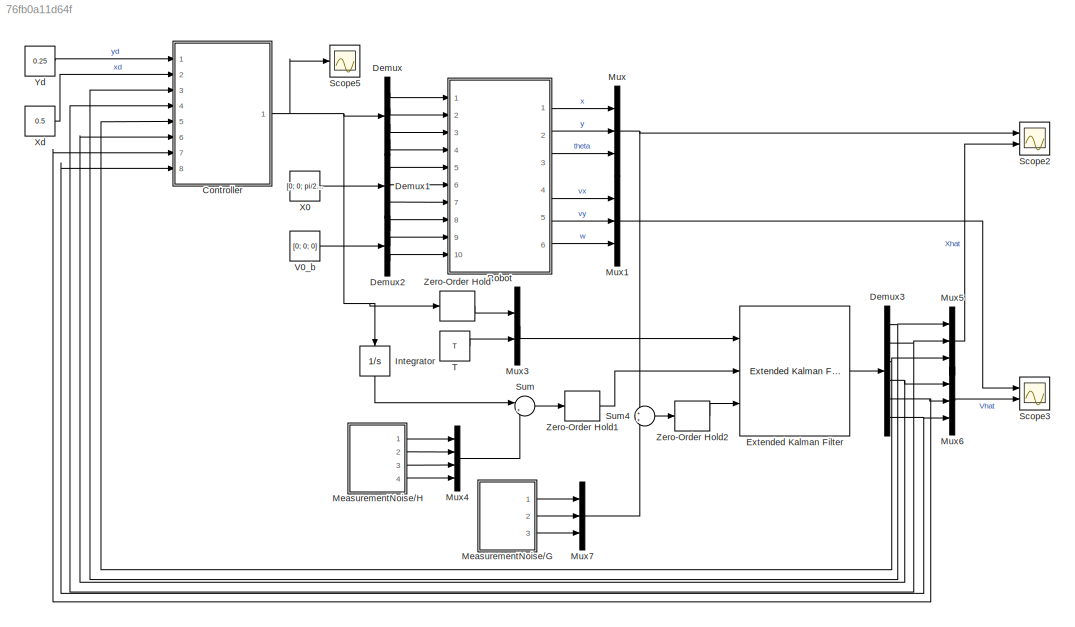
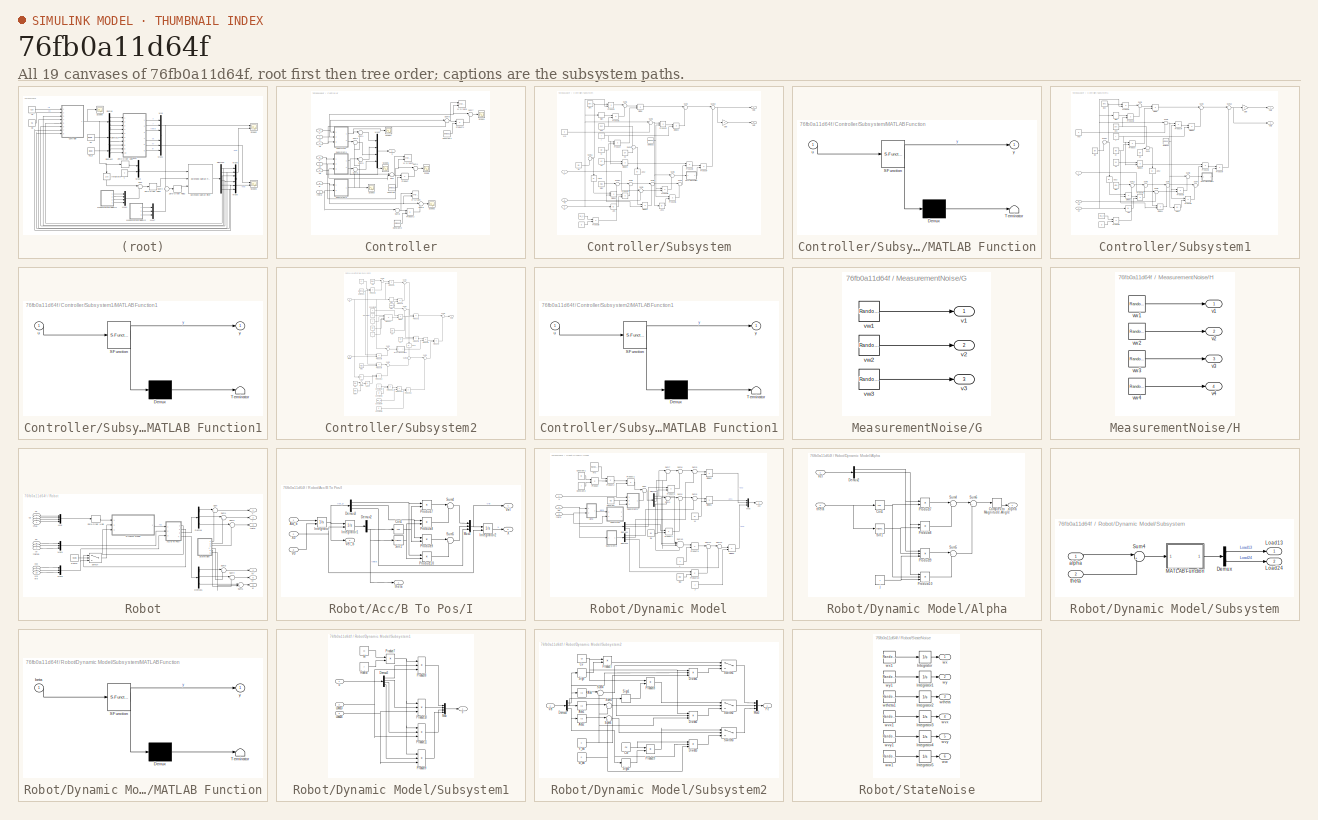
[diagram: thumbnail index - all 19 canvases of the model, root first then tree order]
MODEL slx_76fb0a11d64f
KIND model
CONFIG AbsTol = auto
CONFIG EnableMultiTasking = off
CONFIG FixedStep = T
CONFIG MaxStep = auto
CONFIG MinStep = auto
CONFIG RelTol = 1e-3
CONFIG SampleTimeConstraint = Unconstrained
CONFIG Solver = FixedStepAuto
CONFIG SolverName = FixedStepAuto
CONFIG StartTime = 0.0
CONFIG StopTime = 3
BLOCK [SubSystem] Controller
  Ports = [8, 1]
  RequestExecContextInheritance = off
BLOCK [Constant] Controller/Constant
  Value = lambda1
BLOCK [Constant] Controller/Constant1
  Value = lambda1
BLOCK [Constant] Controller/Constant2
  Value = lambda3
BLOCK [Mux] Controller/Mux2
  DisplayOption = bar
  Ports = [4, 1]
BLOCK [Product] Controller/Product
  InputSameDT = off
  OutDataTypeStr = Inherit: Inherit via internal rule
  Ports = [2, 1]
  RndMeth = Floor
  SaturateOnIntegerOverflow = off
BLOCK [Product] Controller/Product1
  InputSameDT = off
  OutDataTypeStr = Inherit: Inherit via internal rule
  Ports = [2, 1]
  RndMeth = Floor
  SaturateOnIntegerOverflow = off
BLOCK [Product] Controller/Product2
  InputSameDT = off
  OutDataTypeStr = Inherit: Inherit via internal rule
  Ports = [2, 1]
  RndMeth = Floor
  SaturateOnIntegerOverflow = off
BLOCK [Scope] Controller/Scope
  Commented = on
  Floating = off
  NumInputPorts = 1
  Ports = [1]
  ScopeSpecificationString = Simulink.scopes.TimeScopeBlockCfg('CurrentConfiguration', extmgr.ConfigurationSet(extmgr.Configuration('Core','General UI',true,'FigureColor',[1 1 1]),extmgr.Configuration('Core','Source UI',true),extmgr.Configuration('Sources','WiredSimulink',true,'DataLoggingVariableName','ScopeData3'),extmgr.Configuration('Visuals','Time Domain',true,'SerializedDisplays',{struct('MinYLimReal','-1.55543','MaxYLi...<+1511ch>
BLOCK [Scope] Controller/Scope1
  Commented = on
  Floating = off
  NumInputPorts = 1
  Ports = [1]
  ScopeSpecificationString = Simulink.scopes.TimeScopeBlockCfg('CurrentConfiguration', extmgr.ConfigurationSet(extmgr.Configuration('Core','General UI',true,'FigureColor',[1 1 1]),extmgr.Configuration('Core','Source UI',true),extmgr.Configuration('Sources','WiredSimulink',true,'DataLoggingVariableName','ScopeData1'),extmgr.Configuration('Visuals','Time Domain',true,'SerializedDisplays',{struct('MinYLimReal','-1.55417','MaxYLi...<+1513ch>
BLOCK [Scope] Controller/Scope2
  Commented = on
  Floating = off
  NumInputPorts = 1
  Ports = [1]
  ScopeSpecificationString = Simulink.scopes.TimeScopeBlockCfg('CurrentConfiguration', extmgr.ConfigurationSet(extmgr.Configuration('Core','General UI',true,'FigureColor',[1 1 1]),extmgr.Configuration('Core','Source UI',true),extmgr.Configuration('Sources','WiredSimulink',true,'DataLoggingVariableName','ScopeData2'),extmgr.Configuration('Visuals','Time Domain',true,'SerializedDisplays',{struct('MinYLimReal','-342.76865','MaxY...<+1527ch>
BLOCK [Scope] Controller/Scope3
  Floating = off
  NumInputPorts = 1
  Ports = [1]
  ScopeSpecificationString = Simulink.scopes.TimeScopeBlockCfg('CurrentConfiguration', extmgr.ConfigurationSet(extmgr.Configuration('Core','General UI',true),extmgr.Configuration('Core','Source UI',true),extmgr.Configuration('Sources','WiredSimulink',true,'DataLoggingVariableName','ScopeData3'),extmgr.Configuration('Visuals','Time Domain',true,'SerializedDisplays',{struct('MinYLimReal','-2.7478','MaxYLimReal','2.77357','YLabe...<+1394ch>
BLOCK [Scope] Controller/Scope4
  Commented = on
  Floating = off
  NumInputPorts = 1
  Ports = [1]
  ScopeSpecificationString = Simulink.scopes.TimeScopeBlockCfg('CurrentConfiguration', extmgr.ConfigurationSet(extmgr.Configuration('Core','General UI',true),extmgr.Configuration('Core','Source UI',true),extmgr.Configuration('Sources','WiredSimulink',true,'DataLoggingVariableName','ScopeData4'),extmgr.Configuration('Visuals','Time Domain',true,'SerializedDisplays',{struct('MinYLimReal','-253.85356','MaxYLimReal','180.63747','...<+1411ch>
BLOCK [Scope] Controller/Scope5
  Floating = off
  NumInputPorts = 1
  Ports = [1]
  ScopeSpecificationString = Simulink.scopes.TimeScopeBlockCfg('CurrentConfiguration', extmgr.ConfigurationSet(extmgr.Configuration('Core','General UI',true),extmgr.Configuration('Core','Source UI',true),extmgr.Configuration('Sources','WiredSimulink',true,'DataLoggingVariableName','ScopeData5'),extmgr.Configuration('Visuals','Time Domain',true,'SerializedDisplays',{struct('MinYLimReal','-166.70775','MaxYLimReal','144.18877','...<+1412ch>
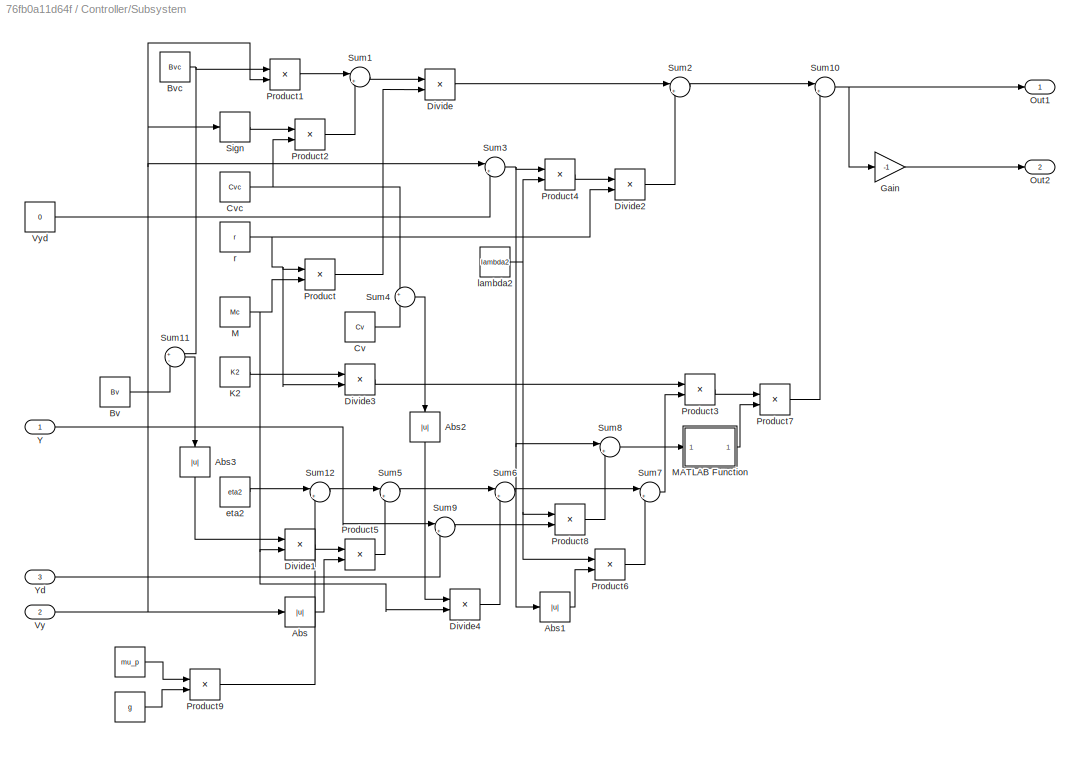
BLOCK [SubSystem] Controller/Subsystem
  Ports = [3, 2]
  RequestExecContextInheritance = off
BLOCK [Constant] Controller/Subsystem/ 
  Value = mu_p
BLOCK [Constant] Controller/Subsystem/  
  Value = g
BLOCK [Abs] Controller/Subsystem/Abs
  SaturateOnIntegerOverflow = off
BLOCK [Abs] Controller/Subsystem/Abs1
  SaturateOnIntegerOverflow = off
BLOCK [Abs] Controller/Subsystem/Abs2
  SaturateOnIntegerOverflow = off
BLOCK [Abs] Controller/Subsystem/Abs3
  SaturateOnIntegerOverflow = off
BLOCK [Constant] Controller/Subsystem/Bv
  Value = Bv
BLOCK [Constant] Controller/Subsystem/Bvc
  Value = Bvc
BLOCK [Constant] Controller/Subsystem/Cv
  Value = Cv
BLOCK [Constant] Controller/Subsystem/Cvc
  Value = Cvc
BLOCK [Product] Controller/Subsystem/Divide
  InputSameDT = off
  Inputs = */
  OutDataTypeStr = Inherit: Inherit via internal rule
  Ports = [2, 1]
  RndMeth = Floor
  SaturateOnIntegerOverflow = off
BLOCK [Product] Controller/Subsystem/Divide1
  InputSameDT = off
  Inputs = */
  OutDataTypeStr = Inherit: Inherit via internal rule
  Ports = [2, 1]
  RndMeth = Floor
  SaturateOnIntegerOverflow = off
BLOCK [Product] Controller/Subsystem/Divide2
  InputSameDT = off
  Inputs = */
  OutDataTypeStr = Inherit: Inherit via internal rule
  Ports = [2, 1]
  RndMeth = Floor
  SaturateOnIntegerOverflow = off
BLOCK [Product] Controller/Subsystem/Divide3
  InputSameDT = off
  Inputs = */
  OutDataTypeStr = Inherit: Inherit via internal rule
  Ports = [2, 1]
  RndMeth = Floor
  SaturateOnIntegerOverflow = off
BLOCK [Product] Controller/Subsystem/Divide4
  InputSameDT = off
  Inputs = */
  OutDataTypeStr = Inherit: Inherit via internal rule
  Ports = [2, 1]
  RndMeth = Floor
  SaturateOnIntegerOverflow = off
BLOCK [Gain] Controller/Subsystem/Gain
  Gain = -1
  OutDataTypeStr = Inherit: Inherit via internal rule
  ParamDataTypeStr = Inherit: Inherit via internal rule
  SaturateOnIntegerOverflow = off
BLOCK [Constant] Controller/Subsystem/K2
  Value = K2
BLOCK [Constant] Controller/Subsystem/M
  Value = Mc
BLOCK [SubSystem] Controller/Subsystem/MATLAB Function
  ErrorFcn = Stateflow.Translate.translate
  PermitHierarchicalResolution = ExplicitOnly
  Ports = [1, 1]
  RequestExecContextInheritance = off
  SFBlockType = MATLAB Function
  TreatAsAtomicUnit = on
BLOCK [Demux] Controller/Subsystem/MATLAB Function/ Demux 
  Outputs = 1
  Ports = [1, 1]
BLOCK [S-Function] Controller/Subsystem/MATLAB Function/ SFunction 
  EnableBusSupport = on
  FunctionName = sf_sfun
  PortCounts = [1 2]
  Ports = [1, 2]
  SFcnIsStateOwnerBlock = off
  SFunctionDeploymentMode = off
  Tag = Stateflow S-Function ControlRobot 1
BLOCK [Terminator] Controller/Subsystem/MATLAB Function/ Terminator 
BLOCK [Inport] Controller/Subsystem/MATLAB Function/u
  IconDisplay = Port number
BLOCK [Outport] Controller/Subsystem/MATLAB Function/y
  IconDisplay = Port number
BLOCK [Outport] Controller/Subsystem/Out1
  IconDisplay = Port number
BLOCK [Outport] Controller/Subsystem/Out2
  IconDisplay = Port number
  Port = 2
BLOCK [Product] Controller/Subsystem/Product
  InputSameDT = off
  OutDataTypeStr = Inherit: Inherit via internal rule
  Ports = [2, 1]
  RndMeth = Floor
  SaturateOnIntegerOverflow = off
BLOCK [Product] Controller/Subsystem/Product1
  InputSameDT = off
  OutDataTypeStr = Inherit: Inherit via internal rule
  Ports = [2, 1]
  RndMeth = Floor
  SaturateOnIntegerOverflow = off
BLOCK [Product] Controller/Subsystem/Product2
  InputSameDT = off
  OutDataTypeStr = Inherit: Inherit via internal rule
  Ports = [2, 1]
  RndMeth = Floor
  SaturateOnIntegerOverflow = off
BLOCK [Product] Controller/Subsystem/Product3
  InputSameDT = off
  OutDataTypeStr = Inherit: Inherit via internal rule
  Ports = [2, 1]
  RndMeth = Floor
  SaturateOnIntegerOverflow = off
BLOCK [Product] Controller/Subsystem/Product4
  InputSameDT = off
  OutDataTypeStr = Inherit: Inherit via internal rule
  Ports = [2, 1]
  RndMeth = Floor
  SaturateOnIntegerOverflow = off
BLOCK [Product] Controller/Subsystem/Product5
  InputSameDT = off
  OutDataTypeStr = Inherit: Inherit via internal rule
  Ports = [2, 1]
  RndMeth = Floor
  SaturateOnIntegerOverflow = off
BLOCK [Product] Controller/Subsystem/Product6
  InputSameDT = off
  OutDataTypeStr = Inherit: Inherit via internal rule
  Ports = [2, 1]
  RndMeth = Floor
  SaturateOnIntegerOverflow = off
BLOCK [Product] Controller/Subsystem/Product7
  InputSameDT = off
  OutDataTypeStr = Inherit: Inherit via internal rule
  Ports = [2, 1]
  RndMeth = Floor
  SaturateOnIntegerOverflow = off
BLOCK [Product] Controller/Subsystem/Product8
  InputSameDT = off
  OutDataTypeStr = Inherit: Inherit via internal rule
  Ports = [2, 1]
  RndMeth = Floor
  SaturateOnIntegerOverflow = off
BLOCK [Product] Controller/Subsystem/Product9
  InputSameDT = off
  OutDataTypeStr = Inherit: Inherit via internal rule
  Ports = [2, 1]
  RndMeth = Floor
  SaturateOnIntegerOverflow = off
BLOCK [Signum] Controller/Subsystem/Sign
BLOCK [Sum] Controller/Subsystem/Sum1
  IconShape = round
  InputSameDT = off
  Inputs = |++
  OutDataTypeStr = Inherit: Inherit via internal rule
  Ports = [2, 1]
  SaturateOnIntegerOverflow = off
BLOCK [Sum] Controller/Subsystem/Sum10
  IconShape = round
  InputSameDT = off
  Inputs = |+-
  OutDataTypeStr = Inherit: Inherit via internal rule
  Ports = [2, 1]
  SaturateOnIntegerOverflow = off
BLOCK [Sum] Controller/Subsystem/Sum11
  IconShape = round
  InputSameDT = off
  Inputs = +-
  OutDataTypeStr = Inherit: Inherit via internal rule
  Ports = [2, 1]
  SaturateOnIntegerOverflow = off
BLOCK [Sum] Controller/Subsystem/Sum12
  IconShape = round
  InputSameDT = off
  Inputs = |++
  OutDataTypeStr = Inherit: Inherit via internal rule
  Ports = [2, 1]
  SaturateOnIntegerOverflow = off
BLOCK [Sum] Controller/Subsystem/Sum2
  IconShape = round
  InputSameDT = off
  Inputs = |+-
  OutDataTypeStr = Inherit: Inherit via internal rule
  Ports = [2, 1]
  SaturateOnIntegerOverflow = off
BLOCK [Sum] Controller/Subsystem/Sum3
  IconShape = round
  InputSameDT = off
  Inputs = |+-
  OutDataTypeStr = Inherit: Inherit via internal rule
  Ports = [2, 1]
  SaturateOnIntegerOverflow = off
BLOCK [Sum] Controller/Subsystem/Sum4
  IconShape = round
  InputSameDT = off
  Inputs = +-
  OutDataTypeStr = Inherit: Inherit via internal rule
  Ports = [2, 1]
  SaturateOnIntegerOverflow = off
BLOCK [Sum] Controller/Subsystem/Sum5
  IconShape = round
  InputSameDT = off
  Inputs = |++
  OutDataTypeStr = Inherit: Inherit via internal rule
  Ports = [2, 1]
  SaturateOnIntegerOverflow = off
BLOCK [Sum] Controller/Subsystem/Sum6
  IconShape = round
  InputSameDT = off
  Inputs = |++
  OutDataTypeStr = Inherit: Inherit via internal rule
  Ports = [2, 1]
  SaturateOnIntegerOverflow = off
BLOCK [Sum] Controller/Subsystem/Sum7
  IconShape = round
  InputSameDT = off
  Inputs = |++
  OutDataTypeStr = Inherit: Inherit via internal rule
  Ports = [2, 1]
  SaturateOnIntegerOverflow = off
BLOCK [Sum] Controller/Subsystem/Sum8
  IconShape = round
  InputSameDT = off
  Inputs = |++
  OutDataTypeStr = Inherit: Inherit via internal rule
  Ports = [2, 1]
  SaturateOnIntegerOverflow = off
BLOCK [Sum] Controller/Subsystem/Sum9
  IconShape = round
  InputSameDT = off
  Inputs = |+-
  OutDataTypeStr = Inherit: Inherit via internal rule
  Ports = [2, 1]
  SaturateOnIntegerOverflow = off
BLOCK [Inport] Controller/Subsystem/Vy
  IconDisplay = Port number
  Port = 2
BLOCK [Constant] Controller/Subsystem/Vyd
  Value = 0
BLOCK [Inport] Controller/Subsystem/Y
  IconDisplay = Port number
BLOCK [Inport] Controller/Subsystem/Yd
  IconDisplay = Port number
  Port = 3
BLOCK [Constant] Controller/Subsystem/eta2
  Value = eta2
BLOCK [Constant] Controller/Subsystem/lambda2
  Value = lambda2
BLOCK [Constant] Controller/Subsystem/r
  Value = r
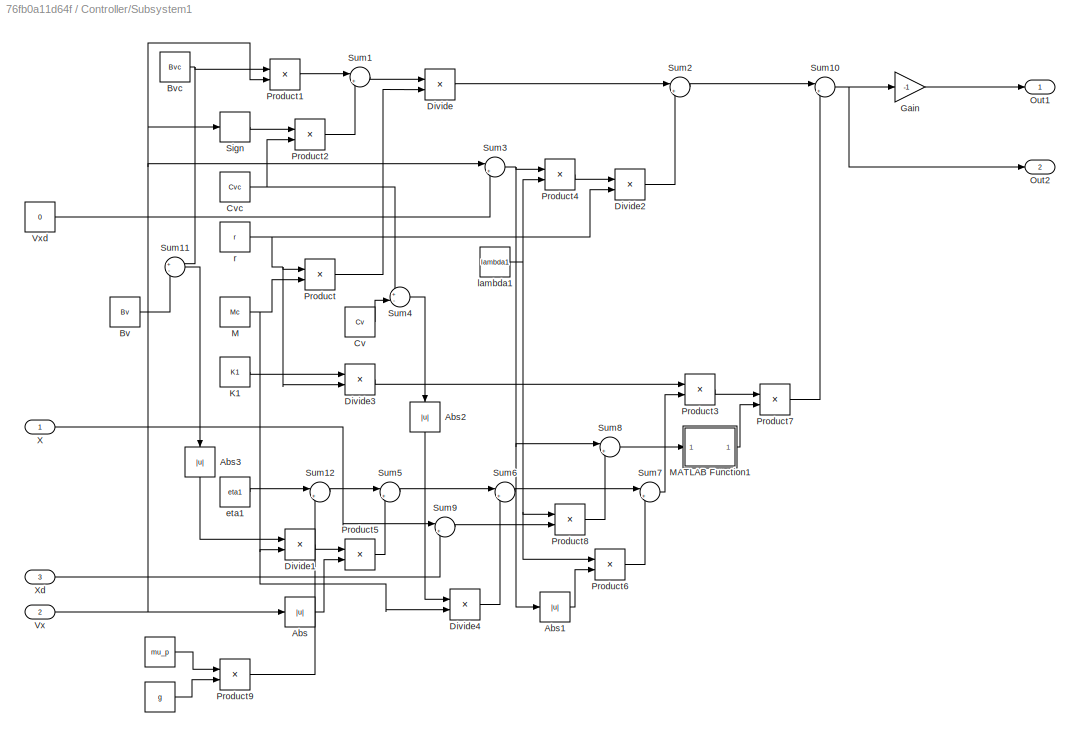
BLOCK [SubSystem] Controller/Subsystem1
  Ports = [3, 2]
  RequestExecContextInheritance = off
BLOCK [Constant] Controller/Subsystem1/ 
  Value = mu_p
BLOCK [Constant] Controller/Subsystem1/  
  Value = g
BLOCK [Abs] Controller/Subsystem1/Abs
  SaturateOnIntegerOverflow = off
BLOCK [Abs] Controller/Subsystem1/Abs1
  SaturateOnIntegerOverflow = off
BLOCK [Abs] Controller/Subsystem1/Abs2
  SaturateOnIntegerOverflow = off
BLOCK [Abs] Controller/Subsystem1/Abs3
  SaturateOnIntegerOverflow = off
BLOCK [Constant] Controller/Subsystem1/Bv
  Value = Bv
BLOCK [Constant] Controller/Subsystem1/Bvc
  Value = Bvc
BLOCK [Constant] Controller/Subsystem1/Cv
  Value = Cv
BLOCK [Constant] Controller/Subsystem1/Cvc
  Value = Cvc
BLOCK [Product] Controller/Subsystem1/Divide
  InputSameDT = off
  Inputs = */
  OutDataTypeStr = Inherit: Inherit via internal rule
  Ports = [2, 1]
  RndMeth = Floor
  SaturateOnIntegerOverflow = off
BLOCK [Product] Controller/Subsystem1/Divide1
  InputSameDT = off
  Inputs = */
  OutDataTypeStr = Inherit: Inherit via internal rule
  Ports = [2, 1]
  RndMeth = Floor
  SaturateOnIntegerOverflow = off
BLOCK [Product] Controller/Subsystem1/Divide2
  InputSameDT = off
  Inputs = */
  OutDataTypeStr = Inherit: Inherit via internal rule
  Ports = [2, 1]
  RndMeth = Floor
  SaturateOnIntegerOverflow = off
BLOCK [Product] Controller/Subsystem1/Divide3
  InputSameDT = off
  Inputs = */
  OutDataTypeStr = Inherit: Inherit via internal rule
  Ports = [2, 1]
  RndMeth = Floor
  SaturateOnIntegerOverflow = off
BLOCK [Product] Controller/Subsystem1/Divide4
  InputSameDT = off
  Inputs = */
  OutDataTypeStr = Inherit: Inherit via internal rule
  Ports = [2, 1]
  RndMeth = Floor
  SaturateOnIntegerOverflow = off
BLOCK [Gain] Controller/Subsystem1/Gain
  Gain = -1
  OutDataTypeStr = Inherit: Inherit via internal rule
  ParamDataTypeStr = Inherit: Inherit via internal rule
  SaturateOnIntegerOverflow = off
BLOCK [Constant] Controller/Subsystem1/K1
  Value = K1
BLOCK [Constant] Controller/Subsystem1/M
  Value = Mc
BLOCK [SubSystem] Controller/Subsystem1/MATLAB Function1
  ErrorFcn = Stateflow.Translate.translate
  PermitHierarchicalResolution = ExplicitOnly
  Ports = [1, 1]
  RequestExecContextInheritance = off
  SFBlockType = MATLAB Function
  TreatAsAtomicUnit = on
BLOCK [Demux] Controller/Subsystem1/MATLAB Function1/ Demux 
  Outputs = 1
  Ports = [1, 1]
BLOCK [S-Function] Controller/Subsystem1/MATLAB Function1/ SFunction 
  EnableBusSupport = on
  FunctionName = sf_sfun
  PortCounts = [1 2]
  Ports = [1, 2]
  SFcnIsStateOwnerBlock = off
  SFunctionDeploymentMode = off
  Tag = Stateflow S-Function ControlRobot 4
BLOCK [Terminator] Controller/Subsystem1/MATLAB Function1/ Terminator 
BLOCK [Inport] Controller/Subsystem1/MATLAB Function1/u
  IconDisplay = Port number
BLOCK [Outport] Controller/Subsystem1/MATLAB Function1/y
  IconDisplay = Port number
BLOCK [Outport] Controller/Subsystem1/Out1
  IconDisplay = Port number
BLOCK [Outport] Controller/Subsystem1/Out2
  IconDisplay = Port number
  Port = 2
BLOCK [Product] Controller/Subsystem1/Product
  InputSameDT = off
  OutDataTypeStr = Inherit: Inherit via internal rule
  Ports = [2, 1]
  RndMeth = Floor
  SaturateOnIntegerOverflow = off
BLOCK [Product] Controller/Subsystem1/Product1
  InputSameDT = off
  OutDataTypeStr = Inherit: Inherit via internal rule
  Ports = [2, 1]
  RndMeth = Floor
  SaturateOnIntegerOverflow = off
BLOCK [Product] Controller/Subsystem1/Product2
  InputSameDT = off
  OutDataTypeStr = Inherit: Inherit via internal rule
  Ports = [2, 1]
  RndMeth = Floor
  SaturateOnIntegerOverflow = off
BLOCK [Product] Controller/Subsystem1/Product3
  InputSameDT = off
  OutDataTypeStr = Inherit: Inherit via internal rule
  Ports = [2, 1]
  RndMeth = Floor
  SaturateOnIntegerOverflow = off
BLOCK [Product] Controller/Subsystem1/Product4
  InputSameDT = off
  OutDataTypeStr = Inherit: Inherit via internal rule
  Ports = [2, 1]
  RndMeth = Floor
  SaturateOnIntegerOverflow = off
BLOCK [Product] Controller/Subsystem1/Product5
  InputSameDT = off
  OutDataTypeStr = Inherit: Inherit via internal rule
  Ports = [2, 1]
  RndMeth = Floor
  SaturateOnIntegerOverflow = off
BLOCK [Product] Controller/Subsystem1/Product6
  InputSameDT = off
  OutDataTypeStr = Inherit: Inherit via internal rule
  Ports = [2, 1]
  RndMeth = Floor
  SaturateOnIntegerOverflow = off
BLOCK [Product] Controller/Subsystem1/Product7
  InputSameDT = off
  OutDataTypeStr = Inherit: Inherit via internal rule
  Ports = [2, 1]
  RndMeth = Floor
  SaturateOnIntegerOverflow = off
BLOCK [Product] Controller/Subsystem1/Product8
  InputSameDT = off
  OutDataTypeStr = Inherit: Inherit via internal rule
  Ports = [2, 1]
  RndMeth = Floor
  SaturateOnIntegerOverflow = off
BLOCK [Product] Controller/Subsystem1/Product9
  InputSameDT = off
  OutDataTypeStr = Inherit: Inherit via internal rule
  Ports = [2, 1]
  RndMeth = Floor
  SaturateOnIntegerOverflow = off
BLOCK [Signum] Controller/Subsystem1/Sign
BLOCK [Sum] Controller/Subsystem1/Sum1
  IconShape = round
  InputSameDT = off
  Inputs = |++
  OutDataTypeStr = Inherit: Inherit via internal rule
  Ports = [2, 1]
  SaturateOnIntegerOverflow = off
BLOCK [Sum] Controller/Subsystem1/Sum10
  IconShape = round
  InputSameDT = off
  Inputs = |+-
  OutDataTypeStr = Inherit: Inherit via internal rule
  Ports = [2, 1]
  SaturateOnIntegerOverflow = off
BLOCK [Sum] Controller/Subsystem1/Sum11
  IconShape = round
  InputSameDT = off
  Inputs = +-
  OutDataTypeStr = Inherit: Inherit via internal rule
  Ports = [2, 1]
  SaturateOnIntegerOverflow = off
BLOCK [Sum] Controller/Subsystem1/Sum12
  IconShape = round
  InputSameDT = off
  Inputs = |++
  OutDataTypeStr = Inherit: Inherit via internal rule
  Ports = [2, 1]
  SaturateOnIntegerOverflow = off
BLOCK [Sum] Controller/Subsystem1/Sum2
  IconShape = round
  InputSameDT = off
  Inputs = |+-
  OutDataTypeStr = Inherit: Inherit via internal rule
  Ports = [2, 1]
  SaturateOnIntegerOverflow = off
BLOCK [Sum] Controller/Subsystem1/Sum3
  IconShape = round
  InputSameDT = off
  Inputs = |+-
  OutDataTypeStr = Inherit: Inherit via internal rule
  Ports = [2, 1]
  SaturateOnIntegerOverflow = off
BLOCK [Sum] Controller/Subsystem1/Sum4
  IconShape = round
  InputSameDT = off
  Inputs = +-
  OutDataTypeStr = Inherit: Inherit via internal rule
  Ports = [2, 1]
  SaturateOnIntegerOverflow = off
BLOCK [Sum] Controller/Subsystem1/Sum5
  IconShape = round
  InputSameDT = off
  Inputs = |++
  OutDataTypeStr = Inherit: Inherit via internal rule
  Ports = [2, 1]
  SaturateOnIntegerOverflow = off
BLOCK [Sum] Controller/Subsystem1/Sum6
  IconShape = round
  InputSameDT = off
  Inputs = |++
  OutDataTypeStr = Inherit: Inherit via internal rule
  Ports = [2, 1]
  SaturateOnIntegerOverflow = off
BLOCK [Sum] Controller/Subsystem1/Sum7
  IconShape = round
  InputSameDT = off
  Inputs = |++
  OutDataTypeStr = Inherit: Inherit via internal rule
  Ports = [2, 1]
  SaturateOnIntegerOverflow = off
BLOCK [Sum] Controller/Subsystem1/Sum8
  IconShape = round
  InputSameDT = off
  Inputs = |++
  OutDataTypeStr = Inherit: Inherit via internal rule
  Ports = [2, 1]
  SaturateOnIntegerOverflow = off
BLOCK [Sum] Controller/Subsystem1/Sum9
  IconShape = round
  InputSameDT = off
  Inputs = |+-
  OutDataTypeStr = Inherit: Inherit via internal rule
  Ports = [2, 1]
  SaturateOnIntegerOverflow = off
BLOCK [Inport] Controller/Subsystem1/Vx
  IconDisplay = Port number
  Port = 2
BLOCK [Constant] Controller/Subsystem1/Vxd
  Value = 0
BLOCK [Inport] Controller/Subsystem1/X
  IconDisplay = Port number
BLOCK [Inport] Controller/Subsystem1/Xd
  IconDisplay = Port number
  Port = 3
BLOCK [Constant] Controller/Subsystem1/eta1
  Value = eta1
BLOCK [Constant] Controller/Subsystem1/lambda1
  Value = lambda1
BLOCK [Constant] Controller/Subsystem1/r
  Value = r
BLOCK [SubSystem] Controller/Subsystem2
  Ports = [2, 1]
  RequestExecContextInheritance = off
BLOCK [Abs] Controller/Subsystem2/Abs
  SaturateOnIntegerOverflow = off
BLOCK [Abs] Controller/Subsystem2/Abs1
  SaturateOnIntegerOverflow = off
BLOCK [Abs] Controller/Subsystem2/Abs2
  SaturateOnIntegerOverflow = off
BLOCK [Constant] Controller/Subsystem2/Bw
  Value = Bwc
BLOCK [Constant] Controller/Subsystem2/Bw 
  Value = Bw
BLOCK [Constant] Controller/Subsystem2/Bwc
  Value = Bwc
BLOCK [Constant] Controller/Subsystem2/Constant
  Value = 2
BLOCK [Constant] Controller/Subsystem2/Constant1
BLOCK [Constant] Controller/Subsystem2/Constant2
  Value = L
BLOCK [Constant] Controller/Subsystem2/Constant3
  Value = M
BLOCK [Constant] Controller/Subsystem2/Constant4
  Value = mu_p
BLOCK [Constant] Controller/Subsystem2/Constant5
  Value = g
BLOCK [Constant] Controller/Subsystem2/Cw
  Value = Cw
BLOCK [Constant] Controller/Subsystem2/Cwc
  Value = Cwc
BLOCK [Product] Controller/Subsystem2/Divide
  InputSameDT = off
  Inputs = */
  OutDataTypeStr = Inherit: Inherit via internal rule
  Ports = [2, 1]
  RndMeth = Floor
  SaturateOnIntegerOverflow = off
BLOCK [Constant] Controller/Subsystem2/J
  Value = Jc
BLOCK [Constant] Controller/Subsystem2/K3
  Value = K3
BLOCK [Constant] Controller/Subsystem2/L
  Value = L
BLOCK [Constant] Controller/Subsystem2/M
  Value = Mc
BLOCK [SubSystem] Controller/Subsystem2/MATLAB Function1
  ErrorFcn = Stateflow.Translate.translate
  PermitHierarchicalResolution = ExplicitOnly
  Ports = [1, 1]
  RequestExecContextInheritance = off
  SFBlockType = MATLAB Function
  TreatAsAtomicUnit = on
BLOCK [Demux] Controller/Subsystem2/MATLAB Function1/ Demux 
  Outputs = 1
  Ports = [1, 1]
BLOCK [S-Function] Controller/Subsystem2/MATLAB Function1/ SFunction 
  EnableBusSupport = on
  FunctionName = sf_sfun
  PortCounts = [1 2]
  Ports = [1, 2]
  SFcnIsStateOwnerBlock = off
  SFunctionDeploymentMode = off
  Tag = Stateflow S-Function ControlRobot 3
BLOCK [Terminator] Controller/Subsystem2/MATLAB Function1/ Terminator 
BLOCK [Inport] Controller/Subsystem2/MATLAB Function1/u
  IconDisplay = Port number
BLOCK [Outport] Controller/Subsystem2/MATLAB Function1/y
  IconDisplay = Port number
BLOCK [Outport] Controller/Subsystem2/Out1
  IconDisplay = Port number
BLOCK [Product] Controller/Subsystem2/Product
  InputSameDT = off
  Inputs = 4
  OutDataTypeStr = Inherit: Inherit via internal rule
  Ports = [4, 1]
  RndMeth = Floor
  SaturateOnIntegerOverflow = off
BLOCK [Product] Controller/Subsystem2/Product1
  InputSameDT = off
  OutDataTypeStr = Inherit: Inherit via internal rule
  Ports = [2, 1]
  RndMeth = Floor
  SaturateOnIntegerOverflow = off
BLOCK [Product] Controller/Subsystem2/Product10
  InputSameDT = off
  OutDataTypeStr = Inherit: Inherit via internal rule
  Ports = [2, 1]
  RndMeth = Floor
  SaturateOnIntegerOverflow = off
BLOCK [Product] Controller/Subsystem2/Product11
  InputSameDT = off
  OutDataTypeStr = Inherit: Inherit via internal rule
  Ports = [2, 1]
  RndMeth = Floor
  SaturateOnIntegerOverflow = off
BLOCK [Product] Controller/Subsystem2/Product12
  InputSameDT = off
  OutDataTypeStr = Inherit: Inherit via internal rule
  Ports = [2, 1]
  RndMeth = Floor
  SaturateOnIntegerOverflow = off
BLOCK [Product] Controller/Subsystem2/Product13
  InputSameDT = off
  OutDataTypeStr = Inherit: Inherit via internal rule
  Ports = [2, 1]
  RndMeth = Floor
  SaturateOnIntegerOverflow = off
BLOCK [Product] Controller/Subsystem2/Product2
  InputSameDT = off
  OutDataTypeStr = Inherit: Inherit via internal rule
  Ports = [2, 1]
  RndMeth = Floor
  SaturateOnIntegerOverflow = off
BLOCK [Product] Controller/Subsystem2/Product3
  InputSameDT = off
  OutDataTypeStr = Inherit: Inherit via internal rule
  Ports = [2, 1]
  RndMeth = Floor
  SaturateOnIntegerOverflow = off
BLOCK [Product] Controller/Subsystem2/Product4
  InputSameDT = off
  OutDataTypeStr = Inherit: Inherit via internal rule
  Ports = [2, 1]
  RndMeth = Floor
  SaturateOnIntegerOverflow = off
BLOCK [Product] Controller/Subsystem2/Product5
  InputSameDT = off
  OutDataTypeStr = Inherit: Inherit via internal rule
  Ports = [2, 1]
  RndMeth = Floor
  SaturateOnIntegerOverflow = off
BLOCK [Product] Controller/Subsystem2/Product6
  InputSameDT = off
  OutDataTypeStr = Inherit: Inherit via internal rule
  Ports = [2, 1]
  RndMeth = Floor
  SaturateOnIntegerOverflow = off
BLOCK [Product] Controller/Subsystem2/Product7
  InputSameDT = off
  OutDataTypeStr = Inherit: Inherit via internal rule
  Ports = [2, 1]
  RndMeth = Floor
  SaturateOnIntegerOverflow = off
BLOCK [Product] Controller/Subsystem2/Product8
  InputSameDT = off
  OutDataTypeStr = Inherit: Inherit via internal rule
  Ports = [2, 1]
  RndMeth = Floor
  SaturateOnIntegerOverflow = off
BLOCK [Product] Controller/Subsystem2/Product9
  InputSameDT = off
  OutDataTypeStr = Inherit: Inherit via internal rule
  Ports = [2, 1]
  RndMeth = Floor
  SaturateOnIntegerOverflow = off
BLOCK [Signum] Controller/Subsystem2/Sign
BLOCK [Sum] Controller/Subsystem2/Sum1
  IconShape = round
  InputSameDT = off
  Inputs = |+-
  OutDataTypeStr = Inherit: Inherit via internal rule
  Ports = [2, 1]
  SaturateOnIntegerOverflow = off
BLOCK [Sum] Controller/Subsystem2/Sum2
  IconShape = round
  InputSameDT = off
  Inputs = |++
  OutDataTypeStr = Inherit: Inherit via internal rule
  Ports = [2, 1]
  SaturateOnIntegerOverflow = off
BLOCK [Sum] Controller/Subsystem2/Sum3
  IconShape = round
  InputSameDT = off
  Inputs = |++
  OutDataTypeStr = Inherit: Inherit via internal rule
  Ports = [2, 1]
  SaturateOnIntegerOverflow = off
BLOCK [Sum] Controller/Subsystem2/Sum4
  IconShape = round
  InputSameDT = off
  Inputs = +-
  OutDataTypeStr = Inherit: Inherit via internal rule
  Ports = [2, 1]
  SaturateOnIntegerOverflow = off
BLOCK [Sum] Controller/Subsystem2/Sum5
  IconShape = round
  InputSameDT = off
  Inputs = |+-
  OutDataTypeStr = Inherit: Inherit via internal rule
  Ports = [2, 1]
  SaturateOnIntegerOverflow = off
BLOCK [Sum] Controller/Subsystem2/Sum6
  IconShape = round
  InputSameDT = off
  Inputs = |++
  OutDataTypeStr = Inherit: Inherit via internal rule
  Ports = [2, 1]
  SaturateOnIntegerOverflow = off
BLOCK [Sum] Controller/Subsystem2/Sum7
  IconShape = round
  InputSameDT = off
  Inputs = |+-
  OutDataTypeStr = Inherit: Inherit via internal rule
  Ports = [2, 1]
  SaturateOnIntegerOverflow = off
BLOCK [Sum] Controller/Subsystem2/Sum8
  IconShape = round
  InputSameDT = off
  OutDataTypeStr = Inherit: Inherit via internal rule
  Ports = [2, 1]
  SaturateOnIntegerOverflow = off
BLOCK [Sum] Controller/Subsystem2/Sum9
  IconShape = round
  InputSameDT = off
  Inputs = |++
  OutDataTypeStr = Inherit: Inherit via internal rule
  Ports = [2, 1]
  SaturateOnIntegerOverflow = off
BLOCK [Constant] Controller/Subsystem2/eta3
  Value = eta3
BLOCK [Constant] Controller/Subsystem2/lambda3
  Value = lambda3
BLOCK [Constant] Controller/Subsystem2/r
  Value = r
BLOCK [Inport] Controller/Subsystem2/theta
  IconDisplay = Port number
  Port = 2
BLOCK [Inport] Controller/Subsystem2/w
  IconDisplay = Port number
BLOCK [Sum] Controller/Sum
  IconShape = round
  InputSameDT = off
  Inputs = |+-
  OutDataTypeStr = Inherit: Inherit via internal rule
  Ports = [2, 1]
  SaturateOnIntegerOverflow = off
BLOCK [Sum] Controller/Sum1
  IconShape = round
  InputSameDT = off
  Inputs = |++
  OutDataTypeStr = Inherit: Inherit via internal rule
  Ports = [2, 1]
  SaturateOnIntegerOverflow = off
BLOCK [Sum] Controller/Sum2
  IconShape = round
  InputSameDT = off
  Inputs = |++
  OutDataTypeStr = Inherit: Inherit via internal rule
  Ports = [2, 1]
  SaturateOnIntegerOverflow = off
BLOCK [Sum] Controller/Sum3
  IconShape = round
  InputSameDT = off
  Inputs = |++
  OutDataTypeStr = Inherit: Inherit via internal rule
  Ports = [2, 1]
  SaturateOnIntegerOverflow = off
BLOCK [Sum] Controller/Sum4
  IconShape = round
  InputSameDT = off
  Inputs = |++
  OutDataTypeStr = Inherit: Inherit via internal rule
  Ports = [2, 1]
  SaturateOnIntegerOverflow = off
BLOCK [Sum] Controller/Sum5
  IconShape = round
  InputSameDT = off
  Inputs = |++
  OutDataTypeStr = Inherit: Inherit via internal rule
  Ports = [2, 1]
  SaturateOnIntegerOverflow = off
BLOCK [Sum] Controller/Sum6
  IconShape = round
  InputSameDT = off
  Inputs = |+-
  OutDataTypeStr = Inherit: Inherit via internal rule
  Ports = [2, 1]
  SaturateOnIntegerOverflow = off
BLOCK [Sum] Controller/Sum7
  IconShape = round
  InputSameDT = off
  Inputs = |++
  OutDataTypeStr = Inherit: Inherit via internal rule
  Ports = [2, 1]
  SaturateOnIntegerOverflow = off
BLOCK [Sum] Controller/Sum8
  IconShape = round
  InputSameDT = off
  Inputs = |+-
  OutDataTypeStr = Inherit: Inherit via internal rule
  Ports = [2, 1]
  SaturateOnIntegerOverflow = off
BLOCK [Sum] Controller/Sum9
  IconShape = round
  InputSameDT = off
  Inputs = |++
  OutDataTypeStr = Inherit: Inherit via internal rule
  Ports = [2, 1]
  SaturateOnIntegerOverflow = off
BLOCK [Inport] Controller/Vx
  IconDisplay = Port number
  Port = 6
BLOCK [Inport] Controller/Vy
  IconDisplay = Port number
  Port = 7
BLOCK [Inport] Controller/X
  IconDisplay = Port number
  Port = 3
BLOCK [Reference] Controller/XY Graph  REF=simulink/Sinks/XY Graph
  Commented = on
  Ports = [2]
  SourceBlock = simulink/Sinks/XY Graph
  SourceProductBaseCode = SL
  SourceProductName = Simulink
  SourceType = XY scope.
BLOCK [Reference] Controller/XY Graph1  REF=simulink/Sinks/XY Graph
  Commented = on
  Ports = [2]
  SourceBlock = simulink/Sinks/XY Graph
  SourceProductBaseCode = SL
  SourceProductName = Simulink
  SourceType = XY scope.
BLOCK [Reference] Controller/XY Graph2  REF=simulink/Sinks/XY Graph
  Commented = on
  Ports = [2]
  SourceBlock = simulink/Sinks/XY Graph
  SourceProductBaseCode = SL
  SourceProductName = Simulink
  SourceType = XY scope.
BLOCK [Inport] Controller/Xd
  IconDisplay = Port number
  Port = 2
BLOCK [Inport] Controller/Y
  IconDisplay = Port number
  Port = 4
BLOCK [Inport] Controller/Yd
  IconDisplay = Port number
BLOCK [Inport] Controller/theta
  IconDisplay = Port number
  Port = 5
BLOCK [Outport] Controller/u
  IconDisplay = Port number
BLOCK [Inport] Controller/w
  IconDisplay = Port number
  Port = 8
BLOCK [Demux] Demux
  DisplayOption = bar
  Ports = [1, 4]
BLOCK [Demux] Demux1
  DisplayOption = bar
  Outputs = 3
  Ports = [1, 3]
BLOCK [Demux] Demux2
  DisplayOption = bar
  Outputs = 3
  Ports = [1, 3]
BLOCK [Demux] Demux3
  DisplayOption = bar
  Outputs = 6
  Ports = [1, 6]
BLOCK [Reference] Extended Kalman Filter  REF=sharedTrackingLibrary/Extended Kalman Filter
  Ports = [3, 1]
  SourceBlock = sharedTrackingLibrary/Extended Kalman Filter
  SourceProductBaseCode = CT
  SourceProductName = Control System Toolbox
  SourceType = Extended Kalman Filter
BLOCK [Integrator] Integrator
  Ports = [1, 1]
BLOCK [SubSystem] MeasurementNoise//G
  Ports = [0, 3]
  RequestExecContextInheritance = off
BLOCK [Outport] MeasurementNoise//G/v1
  IconDisplay = Port number
BLOCK [Outport] MeasurementNoise//G/v2
  IconDisplay = Port number
  Port = 2
BLOCK [Outport] MeasurementNoise//G/v3
  IconDisplay = Port number
  Port = 3
BLOCK [RandomNumber] MeasurementNoise//G/vw1
  SampleTime = 0
  Seed = 4
  Variance = RG(1, 1)
BLOCK [RandomNumber] MeasurementNoise//G/vw2
  SampleTime = 0
  Seed = 5
  Variance = RG(2, 2)
BLOCK [RandomNumber] MeasurementNoise//G/vw3
  SampleTime = 0
  Seed = 6
  Variance = RG(3, 3)
BLOCK [SubSystem] MeasurementNoise//H
  Ports = [0, 4]
  RequestExecContextInheritance = off
BLOCK [Outport] MeasurementNoise//H/v1
  IconDisplay = Port number
BLOCK [Outport] MeasurementNoise//H/v2
  IconDisplay = Port number
  Port = 2
BLOCK [Outport] MeasurementNoise//H/v3
  IconDisplay = Port number
  Port = 3
BLOCK [Outport] MeasurementNoise//H/v4
  IconDisplay = Port number
  Port = 4
BLOCK [RandomNumber] MeasurementNoise//H/vw1
  SampleTime = 0
  Variance = RH(1, 1)
BLOCK [RandomNumber] MeasurementNoise//H/vw2
  SampleTime = 0
  Seed = 1
  Variance = RH(2, 2)
BLOCK [RandomNumber] MeasurementNoise//H/vw3
  SampleTime = 0
  Seed = 2
  Variance = RH(3, 3)
BLOCK [RandomNumber] MeasurementNoise//H/vw4
  SampleTime = 0
  Seed = 3
  Variance = RH(4, 4)
BLOCK [Mux] Mux
  DisplayOption = bar
  Inputs = 3
  Ports = [3, 1]
BLOCK [Mux] Mux1
  DisplayOption = bar
  Inputs = 3
  Ports = [3, 1]
BLOCK [Mux] Mux3
  DisplayOption = bar
  Inputs = 2
  Ports = [2, 1]
BLOCK [Mux] Mux4
  DisplayOption = bar
  Ports = [4, 1]
BLOCK [Mux] Mux5
  DisplayOption = bar
  Inputs = 3
  Ports = [3, 1]
BLOCK [Mux] Mux6
  DisplayOption = bar
  Inputs = 3
  Ports = [3, 1]
BLOCK [Mux] Mux7
  DisplayOption = bar
  Inputs = 3
  Ports = [3, 1]
BLOCK [SubSystem] Robot
  Ports = [10, 6]
  RequestExecContextInheritance = off
BLOCK [SubSystem] Robot/Acc//B To Pos//I
  Ports = [3, 4]
  RequestExecContextInheritance = off
BLOCK [Inport] Robot/Acc//B To Pos//I/Acc_b
  IconDisplay = Port number
BLOCK [Trigonometry] Robot/Acc//B To Pos//I/Cos1
  Operator = cos
  Ports = [1, 1]
BLOCK [Demux] Robot/Acc//B To Pos//I/Demux2
  DisplayOption = bar
  Outputs = 3
  Ports = [1, 3]
BLOCK [Demux] Robot/Acc//B To Pos//I/Demux3
  DisplayOption = bar
  Outputs = 3
  Ports = [1, 3]
BLOCK [Integrator] Robot/Acc//B To Pos//I/Integrator
  InitialConditionSource = external
  Ports = [2, 1]
BLOCK [Integrator] Robot/Acc//B To Pos//I/Integrator1
  InitialConditionSource = external
  Ports = [2, 1]
BLOCK [Integrator] Robot/Acc//B To Pos//I/Integrator2
  InitialConditionSource = external
  Ports = [2, 1]
BLOCK [Mux] Robot/Acc//B To Pos//I/Mux3
  DisplayOption = bar
  Inputs = 3
  Ports = [3, 1]
BLOCK [Product] Robot/Acc//B To Pos//I/Product10
  InputSameDT = off
  OutDataTypeStr = Inherit: Inherit via internal rule
  Ports = [2, 1]
  RndMeth = Floor
  SaturateOnIntegerOverflow = off
BLOCK [Product] Robot/Acc//B To Pos//I/Product7
  InputSameDT = off
  OutDataTypeStr = Inherit: Inherit via internal rule
  Ports = [2, 1]
  RndMeth = Floor
  SaturateOnIntegerOverflow = off
BLOCK [Product] Robot/Acc//B To Pos//I/Product8
  InputSameDT = off
  OutDataTypeStr = Inherit: Inherit via internal rule
  Ports = [2, 1]
  RndMeth = Floor
  SaturateOnIntegerOverflow = off
BLOCK [Product] Robot/Acc//B To Pos//I/Product9
  InputSameDT = off
  OutDataTypeStr = Inherit: Inherit via internal rule
  Ports = [2, 1]
  RndMeth = Floor
  SaturateOnIntegerOverflow = off
BLOCK [Trigonometry] Robot/Acc//B To Pos//I/Sin1
  Ports = [1, 1]
BLOCK [Sum] Robot/Acc//B To Pos//I/Sum4
  IconShape = round
  InputSameDT = off
  Inputs = |+-
  OutDataTypeStr = Inherit: Inherit via internal rule
  Ports = [2, 1]
  SaturateOnIntegerOverflow = off
BLOCK [Sum] Robot/Acc//B To Pos//I/Sum5
  IconShape = round
  InputSameDT = off
  Inputs = |++
  OutDataTypeStr = Inherit: Inherit via internal rule
  Ports = [2, 1]
  SaturateOnIntegerOverflow = off
BLOCK [Inport] Robot/Acc//B To Pos//I/V0
  IconDisplay = Port number
  Port = 3
BLOCK [Outport] Robot/Acc//B To Pos//I/Vel
  IconDisplay = Port number
  Port = 4
BLOCK [Outport] Robot/Acc//B To Pos//I/Vel_b
  IconDisplay = Port number
  Port = 2
BLOCK [Outport] Robot/Acc//B To Pos//I/X
  IconDisplay = Port number
  Port = 3
BLOCK [Inport] Robot/Acc//B To Pos//I/X0
  IconDisplay = Port number
  Port = 2
BLOCK [Outport] Robot/Acc//B To Pos//I/theta
  IconDisplay = Port number
BLOCK [Demux] Robot/Demux
  DisplayOption = bar
  Outputs = 3
  Ports = [1, 3]
BLOCK [Demux] Robot/Demux1
  DisplayOption = bar
  Outputs = 3
  Ports = [1, 3]
BLOCK [SubSystem] Robot/Dynamic Model
  Ports = [3, 1]
  RequestExecContextInheritance = off
BLOCK [Outport] Robot/Dynamic Model/Acc
  IconDisplay = Port number
BLOCK [SubSystem] Robot/Dynamic Model/Alpha
  Ports = [2, 1]
  RequestExecContextInheritance = off
BLOCK [ComplexToMagnitudeAngle] Robot/Dynamic Model/Alpha/Complex to Magnitude-Angle
  Ports = [1, 2]
BLOCK [Trigonometry] Robot/Dynamic Model/Alpha/Cos1
  Operator = cos
  Ports = [1, 1]
BLOCK [Demux] Robot/Dynamic Model/Alpha/Demux2
  DisplayOption = bar
  Outputs = 3
  Ports = [1, 3]
BLOCK [Product] Robot/Dynamic Model/Alpha/Product10
  InputSameDT = off
  Inputs = 3
  OutDataTypeStr = Inherit: Inherit via internal rule
  Ports = [3, 1]
  RndMeth = Floor
  SaturateOnIntegerOverflow = off
BLOCK [Product] Robot/Dynamic Model/Alpha/Product7
  InputSameDT = off
  OutDataTypeStr = Inherit: Inherit via internal rule
  Ports = [2, 1]
  RndMeth = Floor
  SaturateOnIntegerOverflow = off
BLOCK [Product] Robot/Dynamic Model/Alpha/Product8
  InputSameDT = off
  OutDataTypeStr = Inherit: Inherit via internal rule
  Ports = [2, 1]
  RndMeth = Floor
  SaturateOnIntegerOverflow = off
BLOCK [Product] Robot/Dynamic Model/Alpha/Product9
  InputSameDT = off
  Inputs = 3
  OutDataTypeStr = Inherit: Inherit via internal rule
  Ports = [3, 1]
  RndMeth = Floor
  SaturateOnIntegerOverflow = off
BLOCK [Trigonometry] Robot/Dynamic Model/Alpha/Sin1
  Ports = [1, 1]
BLOCK [Sum] Robot/Dynamic Model/Alpha/Sum4
  IconShape = round
  InputSameDT = off
  Inputs = |+-
  OutDataTypeStr = Inherit: Inherit via internal rule
  Ports = [2, 1]
  SaturateOnIntegerOverflow = off
BLOCK [Sum] Robot/Dynamic Model/Alpha/Sum5
  IconShape = round
  InputSameDT = off
  Inputs = |++
  OutDataTypeStr = Inherit: Inherit via internal rule
  Ports = [2, 1]
  SaturateOnIntegerOverflow = off
BLOCK [Sum] Robot/Dynamic Model/Alpha/Sum6
  IconShape = round
  InputSameDT = off
  Inputs = |++
  OutDataTypeStr = Inherit: Inherit via internal rule
  Ports = [2, 1]
  SaturateOnIntegerOverflow = off
BLOCK [Inport] Robot/Dynamic Model/Alpha/Vel
  IconDisplay = Port number
BLOCK [Outport] Robot/Dynamic Model/Alpha/alpha
  IconDisplay = Port number
BLOCK [Constant] Robot/Dynamic Model/Alpha/j
  Value = j
BLOCK [Inport] Robot/Dynamic Model/Alpha/theta
  IconDisplay = Port number
  Port = 2
BLOCK [Constant] Robot/Dynamic Model/Bv
  Value = Bv
BLOCK [Constant] Robot/Dynamic Model/Bw
  Value = Bw
BLOCK [Constant] Robot/Dynamic Model/Constant
  Value = 0.5
BLOCK [Constant] Robot/Dynamic Model/Constant1
  Commented = on
  Value = M
BLOCK [Constant] Robot/Dynamic Model/Constant2
  Commented = on
  Value = r
BLOCK [Demux] Robot/Dynamic Model/Demux2
  DisplayOption = bar
  Ports = [1, 4]
BLOCK [Demux] Robot/Dynamic Model/Demux3
  DisplayOption = bar
  Outputs = 3
  Ports = [1, 3]
BLOCK [Demux] Robot/Dynamic Model/Demux4
  DisplayOption = bar
  Outputs = 3
  Ports = [1, 3]
BLOCK [Product] Robot/Dynamic Model/Divide1
  InputSameDT = off
  Inputs = */
  OutDataTypeStr = Inherit: Inherit via internal rule
  Ports = [2, 1]
  RndMeth = Floor
  SaturateOnIntegerOverflow = off
BLOCK [Product] Robot/Dynamic Model/Divide2
  InputSameDT = off
  Inputs = */
  OutDataTypeStr = Inherit: Inherit via internal rule
  Ports = [2, 1]
  RndMeth = Floor
  SaturateOnIntegerOverflow = off
BLOCK [Product] Robot/Dynamic Model/Divide3
  InputSameDT = off
  Inputs = */
  OutDataTypeStr = Inherit: Inherit via internal rule
  Ports = [2, 1]
  RndMeth = Floor
  SaturateOnIntegerOverflow = off
BLOCK [Constant] Robot/Dynamic Model/J
  Value = J
BLOCK [Constant] Robot/Dynamic Model/L
  Value = L
BLOCK [Constant] Robot/Dynamic Model/M
  Value = M
BLOCK [Mux] Robot/Dynamic Model/Mux
  DisplayOption = bar
  Inputs = 3
  Ports = [3, 1]
BLOCK [Product] Robot/Dynamic Model/Product
  Commented = on
  InputSameDT = off
  OutDataTypeStr = Inherit: Inherit via internal rule
  Ports = [2, 1]
  RndMeth = Floor
  SaturateOnIntegerOverflow = off
BLOCK [Product] Robot/Dynamic Model/Product1
  Commented = on
  InputSameDT = off
  OutDataTypeStr = Inherit: Inherit via internal rule
  Ports = [2, 1]
  RndMeth = Floor
  SaturateOnIntegerOverflow = off
BLOCK [Product] Robot/Dynamic Model/Product10
  InputSameDT = off
  OutDataTypeStr = Inherit: Inherit via internal rule
  Ports = [2, 1]
  RndMeth = Floor
  SaturateOnIntegerOverflow = off
BLOCK [Product] Robot/Dynamic Model/Product2
  Commented = on
  InputSameDT = off
  OutDataTypeStr = Inherit: Inherit via internal rule
  Ports = [2, 1]
  RndMeth = Floor
  SaturateOnIntegerOverflow = off
BLOCK [Product] Robot/Dynamic Model/Product7
  InputSameDT = off
  OutDataTypeStr = Inherit: Inherit via internal rule
  Ports = [2, 1]
  RndMeth = Floor
  SaturateOnIntegerOverflow = off
BLOCK [Product] Robot/Dynamic Model/Product8
  InputSameDT = off
  OutDataTypeStr = Inherit: Inherit via internal rule
  Ports = [2, 1]
  RndMeth = Floor
  SaturateOnIntegerOverflow = off
BLOCK [Product] Robot/Dynamic Model/Product9
  InputSameDT = off
  OutDataTypeStr = Inherit: Inherit via internal rule
  Ports = [2, 1]
  RndMeth = Floor
  SaturateOnIntegerOverflow = off
BLOCK [SubSystem] Robot/Dynamic Model/Subsystem
  Commented = on
  Ports = [2, 2]
  RequestExecContextInheritance = off
BLOCK [Demux] Robot/Dynamic Model/Subsystem/Demux
  DisplayOption = bar
  Outputs = 2
  Ports = [1, 2]
BLOCK [Outport] Robot/Dynamic Model/Subsystem/Load13
  IconDisplay = Port number
BLOCK [Outport] Robot/Dynamic Model/Subsystem/Load24
  IconDisplay = Port number
  Port = 2
BLOCK [SubSystem] Robot/Dynamic Model/Subsystem/MATLAB Function
  ErrorFcn = Stateflow.Translate.translate
  PermitHierarchicalResolution = ExplicitOnly
  Ports = [1, 1]
  RequestExecContextInheritance = off
  SFBlockType = MATLAB Function
  TreatAsAtomicUnit = on
BLOCK [Demux] Robot/Dynamic Model/Subsystem/MATLAB Function/ Demux 
  Outputs = 1
  Ports = [1, 1]
BLOCK [S-Function] Robot/Dynamic Model/Subsystem/MATLAB Function/ SFunction 
  EnableBusSupport = on
  FunctionName = sf_sfun
  PortCounts = [1 2]
  Ports = [1, 2]
  SFcnIsStateOwnerBlock = off
  SFunctionDeploymentMode = off
  Tag = Stateflow S-Function ControlRobot 2
BLOCK [Terminator] Robot/Dynamic Model/Subsystem/MATLAB Function/ Terminator 
BLOCK [Inport] Robot/Dynamic Model/Subsystem/MATLAB Function/beta
  IconDisplay = Port number
BLOCK [Outport] Robot/Dynamic Model/Subsystem/MATLAB Function/y
  IconDisplay = Port number
BLOCK [Sum] Robot/Dynamic Model/Subsystem/Sum4
  IconShape = round
  InputSameDT = off
  Inputs = |+-
  OutDataTypeStr = Inherit: Inherit via internal rule
  Ports = [2, 1]
  SaturateOnIntegerOverflow = off
BLOCK [Inport] Robot/Dynamic Model/Subsystem/alpha
  IconDisplay = Port number
BLOCK [Inport] Robot/Dynamic Model/Subsystem/theta
  IconDisplay = Port number
  Port = 2
BLOCK [SubSystem] Robot/Dynamic Model/Subsystem1
  Ports = [3, 1]
  RequestExecContextInheritance = off
BLOCK [Demux] Robot/Dynamic Model/Subsystem1/Demux3
  DisplayOption = bar
  Ports = [1, 4]
BLOCK [Outport] Robot/Dynamic Model/Subsystem1/F
  IconDisplay = Port number
BLOCK [Inport] Robot/Dynamic Model/Subsystem1/Load13
  IconDisplay = Port number
  Port = 2
BLOCK [Inport] Robot/Dynamic Model/Subsystem1/Load24
  IconDisplay = Port number
  Port = 3
BLOCK [Constant] Robot/Dynamic Model/Subsystem1/M
  Value = M
BLOCK [Mux] Robot/Dynamic Model/Subsystem1/Mux
  DisplayOption = bar
  Ports = [4, 1]
BLOCK [Product] Robot/Dynamic Model/Subsystem1/Product10
  InputSameDT = off
  Inputs = 3
  OutDataTypeStr = Inherit: Inherit via internal rule
  Ports = [3, 1]
  RndMeth = Floor
  SaturateOnIntegerOverflow = off
BLOCK [Product] Robot/Dynamic Model/Subsystem1/Product11
  InputSameDT = off
  Inputs = 3
  OutDataTypeStr = Inherit: Inherit via internal rule
  Ports = [3, 1]
  RndMeth = Floor
  SaturateOnIntegerOverflow = off
BLOCK [Product] Robot/Dynamic Model/Subsystem1/Product7
  InputSameDT = off
  OutDataTypeStr = Inherit: Inherit via internal rule
  Ports = [2, 1]
  RndMeth = Floor
  SaturateOnIntegerOverflow = off
BLOCK [Product] Robot/Dynamic Model/Subsystem1/Product8
  InputSameDT = off
  Inputs = 3
  OutDataTypeStr = Inherit: Inherit via internal rule
  Ports = [3, 1]
  RndMeth = Floor
  SaturateOnIntegerOverflow = off
BLOCK [Product] Robot/Dynamic Model/Subsystem1/Product9
  InputSameDT = off
  Inputs = 3
  OutDataTypeStr = Inherit: Inherit via internal rule
  Ports = [3, 1]
  RndMeth = Floor
  SaturateOnIntegerOverflow = off
BLOCK [Constant] Robot/Dynamic Model/Subsystem1/Radius
  Value = r
BLOCK [Inport] Robot/Dynamic Model/Subsystem1/u
  IconDisplay = Port number
BLOCK [SubSystem] Robot/Dynamic Model/Subsystem2
  Ports = [1, 1]
  RequestExecContextInheritance = off
BLOCK [Abs] Robot/Dynamic Model/Subsystem2/Abs
  SaturateOnIntegerOverflow = off
BLOCK [Abs] Robot/Dynamic Model/Subsystem2/Abs1
  SaturateOnIntegerOverflow = off
BLOCK [Abs] Robot/Dynamic Model/Subsystem2/Abs2
  SaturateOnIntegerOverflow = off
BLOCK [Constant] Robot/Dynamic Model/Subsystem2/Cv
  Value = Cv
BLOCK [Constant] Robot/Dynamic Model/Subsystem2/Cw
  Value = Cw
BLOCK [Demux] Robot/Dynamic Model/Subsystem2/Demux2
  DisplayOption = bar
  Outputs = 3
  Ports = [1, 3]
BLOCK [Product] Robot/Dynamic Model/Subsystem2/Divide1
  InputSameDT = off
  Inputs = **/
  OutDataTypeStr = Inherit: Inherit via internal rule
  Ports = [3, 1]
  RndMeth = Floor
  SaturateOnIntegerOverflow = off
BLOCK [Product] Robot/Dynamic Model/Subsystem2/Divide2
  InputSameDT = off
  Inputs = **/
  OutDataTypeStr = Inherit: Inherit via internal rule
  Ports = [3, 1]
  RndMeth = Floor
  SaturateOnIntegerOverflow = off
BLOCK [Product] Robot/Dynamic Model/Subsystem2/Divide3
  InputSameDT = off
  Inputs = **/
  OutDataTypeStr = Inherit: Inherit via internal rule
  Ports = [3, 1]
  RndMeth = Floor
  SaturateOnIntegerOverflow = off
BLOCK [Outport] Robot/Dynamic Model/Subsystem2/Fc
  IconDisplay = Port number
BLOCK [Mux] Robot/Dynamic Model/Subsystem2/Mux3
  DisplayOption = bar
  Inputs = 3
  Ports = [3, 1]
BLOCK [Product] Robot/Dynamic Model/Subsystem2/Product7
  InputSameDT = off
  OutDataTypeStr = Inherit: Inherit via internal rule
  Ports = [2, 1]
  RndMeth = Floor
  SaturateOnIntegerOverflow = off
BLOCK [Product] Robot/Dynamic Model/Subsystem2/Product8
  InputSameDT = off
  OutDataTypeStr = Inherit: Inherit via internal rule
  Ports = [2, 1]
  RndMeth = Floor
  SaturateOnIntegerOverflow = off
BLOCK [Product] Robot/Dynamic Model/Subsystem2/Product9
  InputSameDT = off
  OutDataTypeStr = Inherit: Inherit via internal rule
  Ports = [2, 1]
  RndMeth = Floor
  SaturateOnIntegerOverflow = off
BLOCK [Signum] Robot/Dynamic Model/Subsystem2/Sign
BLOCK [Signum] Robot/Dynamic Model/Subsystem2/Sign1
BLOCK [Signum] Robot/Dynamic Model/Subsystem2/Sign2
BLOCK [Sum] Robot/Dynamic Model/Subsystem2/Sum4
  IconShape = round
  InputSameDT = off
  Inputs = |+-
  OutDataTypeStr = Inherit: Inherit via internal rule
  Ports = [2, 1]
  SaturateOnIntegerOverflow = off
BLOCK [Sum] Robot/Dynamic Model/Subsystem2/Sum5
  IconShape = round
  InputSameDT = off
  Inputs = |+-
  OutDataTypeStr = Inherit: Inherit via internal rule
  Ports = [2, 1]
  SaturateOnIntegerOverflow = off
BLOCK [Sum] Robot/Dynamic Model/Subsystem2/Sum6
  IconShape = round
  InputSameDT = off
  Inputs = |+-
  OutDataTypeStr = Inherit: Inherit via internal rule
  Ports = [2, 1]
  SaturateOnIntegerOverflow = off
BLOCK [Switch] Robot/Dynamic Model/Subsystem2/Switch1
  InputSameDT = off
  SaturateOnIntegerOverflow = off
BLOCK [Switch] Robot/Dynamic Model/Subsystem2/Switch2
  InputSameDT = off
  SaturateOnIntegerOverflow = off
BLOCK [Switch] Robot/Dynamic Model/Subsystem2/Switch3
  InputSameDT = off
  SaturateOnIntegerOverflow = off
BLOCK [Constant] Robot/Dynamic Model/Subsystem2/V_sat
  Value = 0
BLOCK [Inport] Robot/Dynamic Model/Subsystem2/Vel
  IconDisplay = Port number
BLOCK [Constant] Robot/Dynamic Model/Subsystem2/w_sat
  Value = 0
BLOCK [Sum] Robot/Dynamic Model/Sum
  IconShape = round
  InputSameDT = off
  Inputs = |++
  OutDataTypeStr = Inherit: Inherit via internal rule
  Ports = [2, 1]
  SaturateOnIntegerOverflow = off
BLOCK [Sum] Robot/Dynamic Model/Sum10
  IconShape = round
  InputSameDT = off
  Inputs = |++++
  OutDataTypeStr = Inherit: Inherit via internal rule
  Ports = [4, 1]
  SaturateOnIntegerOverflow = off
BLOCK [Sum] Robot/Dynamic Model/Sum11
  IconShape = round
  InputSameDT = off
  Inputs = |+-
  OutDataTypeStr = Inherit: Inherit via internal rule
  Ports = [2, 1]
  SaturateOnIntegerOverflow = off
BLOCK [Sum] Robot/Dynamic Model/Sum12
  IconShape = round
  InputSameDT = off
  Inputs = |+-
  OutDataTypeStr = Inherit: Inherit via internal rule
  Ports = [2, 1]
  SaturateOnIntegerOverflow = off
BLOCK [Sum] Robot/Dynamic Model/Sum4
  IconShape = round
  InputSameDT = off
  Inputs = |-+
  OutDataTypeStr = Inherit: Inherit via internal rule
  Ports = [2, 1]
  SaturateOnIntegerOverflow = off
BLOCK [Sum] Robot/Dynamic Model/Sum5
  IconShape = round
  InputSameDT = off
  Inputs = |+-
  OutDataTypeStr = Inherit: Inherit via internal rule
  Ports = [2, 1]
  SaturateOnIntegerOverflow = off
BLOCK [Sum] Robot/Dynamic Model/Sum6
  IconShape = round
  InputSameDT = off
  Inputs = |+-
  OutDataTypeStr = Inherit: Inherit via internal rule
  Ports = [2, 1]
  SaturateOnIntegerOverflow = off
BLOCK [Sum] Robot/Dynamic Model/Sum7
  IconShape = round
  InputSameDT = off
  Inputs = |+-
  OutDataTypeStr = Inherit: Inherit via internal rule
  Ports = [2, 1]
  SaturateOnIntegerOverflow = off
BLOCK [Sum] Robot/Dynamic Model/Sum8
  IconShape = round
  InputSameDT = off
  Inputs = |+-
  OutDataTypeStr = Inherit: Inherit via internal rule
  Ports = [2, 1]
  SaturateOnIntegerOverflow = off
BLOCK [Sum] Robot/Dynamic Model/Sum9
  IconShape = round
  InputSameDT = off
  Inputs = |+-
  OutDataTypeStr = Inherit: Inherit via internal rule
  Ports = [2, 1]
  SaturateOnIntegerOverflow = off
BLOCK [Inport] Robot/Dynamic Model/Vel
  IconDisplay = Port number
  Port = 2
BLOCK [Reference] Robot/Dynamic Model/mu  REF=dspsrcs4/Random
Source
  Commented = on
  Ports = [0, 1]
  SourceBlock = dspsrcs4/Random\nSource
  SourceProductBaseCode = DS
  SourceProductName = DSP System Toolbox
  SourceType = Random Source
  UserDataPersistent = on
BLOCK [Inport] Robot/Dynamic Model/theta
  IconDisplay = Port number
  Port = 3
BLOCK [Inport] Robot/Dynamic Model/u
  IconDisplay = Port number
BLOCK [Mux] Robot/Mux
  DisplayOption = bar
  Ports = [4, 1]
BLOCK [Mux] Robot/Mux1
  DisplayOption = bar
  Inputs = 3
  Ports = [3, 1]
BLOCK [Mux] Robot/Mux2
  DisplayOption = bar
  Inputs = 3
  Ports = [3, 1]
BLOCK [Reference] Robot/Ramp  REF=simulink/Sources/Ramp
  Ports = [0, 1]
  SourceBlock = simulink/Sources/Ramp
  SourceProductBaseCode = SL
  SourceProductName = Simulink
  SourceType = Ramp
BLOCK [SubSystem] Robot/StateNoise
  Ports = [0, 6]
  RequestExecContextInheritance = off
BLOCK [Integrator] Robot/StateNoise/Integrator
  Ports = [1, 1]
BLOCK [Integrator] Robot/StateNoise/Integrator1
  Ports = [1, 1]
BLOCK [Integrator] Robot/StateNoise/Integrator2
  Ports = [1, 1]
BLOCK [Integrator] Robot/StateNoise/Integrator3
  Ports = [1, 1]
BLOCK [Integrator] Robot/StateNoise/Integrator4
  Ports = [1, 1]
BLOCK [Integrator] Robot/StateNoise/Integrator5
  Ports = [1, 1]
BLOCK [Outport] Robot/StateNoise/wtheta
  IconDisplay = Port number
  Port = 3
BLOCK [RandomNumber] Robot/StateNoise/wtheta1
  SampleTime = 0
  Seed = 8
  Variance = Q(3, 3)
BLOCK [Outport] Robot/StateNoise/wvx
  IconDisplay = Port number
  Port = 4
BLOCK [RandomNumber] Robot/StateNoise/wvx1
  SampleTime = 0
  Seed = 9
  Variance = Q(4, 4)
BLOCK [Outport] Robot/StateNoise/wvy
  IconDisplay = Port number
  Port = 5
BLOCK [RandomNumber] Robot/StateNoise/wvy1
  SampleTime = 0
  Seed = 10
  Variance = Q(5, 5)
BLOCK [Outport] Robot/StateNoise/ww
  IconDisplay = Port number
  Port = 6
BLOCK [RandomNumber] Robot/StateNoise/ww1
  SampleTime = 0
  Seed = 11
  Variance = Q(6, 6)
BLOCK [Outport] Robot/StateNoise/wx
  IconDisplay = Port number
BLOCK [RandomNumber] Robot/StateNoise/wx1
  SampleTime = 0
  Seed = 6
  Variance = Q(1, 1)
BLOCK [Outport] Robot/StateNoise/wy
  IconDisplay = Port number
  Port = 2
BLOCK [RandomNumber] Robot/StateNoise/wy1
  SampleTime = 0
  Seed = 7
  Variance = Q(2, 2)
BLOCK [Sum] Robot/Sum
  IconShape = round
  InputSameDT = off
  Inputs = |++
  OutDataTypeStr = Inherit: Inherit via internal rule
  Ports = [2, 1]
  SaturateOnIntegerOverflow = off
BLOCK [Sum] Robot/Sum1
  IconShape = round
  InputSameDT = off
  Inputs = |++
  OutDataTypeStr = Inherit: Inherit via internal rule
  Ports = [2, 1]
  SaturateOnIntegerOverflow = off
BLOCK [Sum] Robot/Sum2
  IconShape = round
  InputSameDT = off
  Inputs = |++
  OutDataTypeStr = Inherit: Inherit via internal rule
  Ports = [2, 1]
  SaturateOnIntegerOverflow = off
BLOCK [Sum] Robot/Sum3
  IconShape = round
  InputSameDT = off
  Inputs = |++
  OutDataTypeStr = Inherit: Inherit via internal rule
  Ports = [2, 1]
  SaturateOnIntegerOverflow = off
BLOCK [Sum] Robot/Sum4
  IconShape = round
  InputSameDT = off
  Inputs = |++
  OutDataTypeStr = Inherit: Inherit via internal rule
  Ports = [2, 1]
  SaturateOnIntegerOverflow = off
BLOCK [Sum] Robot/Sum5
  IconShape = round
  InputSameDT = off
  Inputs = |++
  OutDataTypeStr = Inherit: Inherit via internal rule
  Ports = [2, 1]
  SaturateOnIntegerOverflow = off
BLOCK [Switch] Robot/Switch
  Criteria = u2 > Threshold
  InputSameDT = off
  SaturateOnIntegerOverflow = off
  Threshold = T+eps
BLOCK [ZeroOrderHold] Robot/Zero-Order Hold
  SampleTime = T
BLOCK [Outport] Robot/theta
  IconDisplay = Port number
  Port = 3
BLOCK [Inport] Robot/theta0
  IconDisplay = Port number
  Port = 7
BLOCK [Inport] Robot/u1
  IconDisplay = Port number
BLOCK [Inport] Robot/u2
  IconDisplay = Port number
  Port = 2
BLOCK [Inport] Robot/u3
  IconDisplay = Port number
  Port = 3
BLOCK [Inport] Robot/u4
  IconDisplay = Port number
  Port = 4
BLOCK [Outport] Robot/vx
  IconDisplay = Port number
  Port = 4
BLOCK [Inport] Robot/vx0
  IconDisplay = Port number
  Port = 8
BLOCK [Outport] Robot/vy
  IconDisplay = Port number
  Port = 5
BLOCK [Inport] Robot/vy0
  IconDisplay = Port number
  Port = 9
BLOCK [Outport] Robot/w
  IconDisplay = Port number
  Port = 6
BLOCK [Inport] Robot/w0
  IconDisplay = Port number
  Port = 10
BLOCK [Outport] Robot/x
  IconDisplay = Port number
BLOCK [Inport] Robot/x0
  IconDisplay = Port number
  Port = 5
BLOCK [Outport] Robot/y
  IconDisplay = Port number
  Port = 2
BLOCK [Inport] Robot/y0
  IconDisplay = Port number
  Port = 6
BLOCK [Scope] Scope2
  Floating = off
  NumInputPorts = 2
  Ports = [2]
  ScopeSpecificationString = Simulink.scopes.TimeScopeBlockCfg('CurrentConfiguration', extmgr.ConfigurationSet(extmgr.Configuration('Core','General UI',true,'FigureColor',[1 1 1]),extmgr.Configuration('Core','Source UI',true),extmgr.Configuration('Sources','WiredSimulink',true),extmgr.Configuration('Visuals','Time Domain',true,'SerializedDisplays',{struct('MinYLimReal','-0.17421','MaxYLimReal','0.57414','YLabelReal','','MinYL...<+2056ch>
BLOCK [Scope] Scope3
  Floating = off
  NumInputPorts = 2
  Ports = [2]
  ScopeSpecificationString = Simulink.scopes.TimeScopeBlockCfg('CurrentConfiguration', extmgr.ConfigurationSet(extmgr.Configuration('Core','General UI',true,'FigureColor',[1 1 1]),extmgr.Configuration('Core','Source UI',true),extmgr.Configuration('Sources','WiredSimulink',true,'DataLoggingVariableName','ScopeData6'),extmgr.Configuration('Visuals','Time Domain',true,'SerializedDisplays',{struct('MinYLimReal','-12.81057','MaxYL...<+2102ch>
BLOCK [Scope] Scope5
  Floating = off
  NumInputPorts = 1
  Ports = [1]
  ScopeSpecificationString = Simulink.scopes.TimeScopeBlockCfg('CurrentConfiguration', extmgr.ConfigurationSet(extmgr.Configuration('Core','General UI',true,'FigureColor',[1 1 1]),extmgr.Configuration('Core','Source UI',true),extmgr.Configuration('Sources','WiredSimulink',true,'DataLoggingVariableName','ScopeData3'),extmgr.Configuration('Visuals','Time Domain',true,'SerializedDisplays',{struct('MinYLimReal','-177.99321','MaxY...<+1832ch>
BLOCK [Sum] Sum
  IconShape = round
  InputSameDT = off
  Inputs = |++
  OutDataTypeStr = Inherit: Inherit via internal rule
  Ports = [2, 1]
  SaturateOnIntegerOverflow = off
BLOCK [Sum] Sum4
  IconShape = round
  InputSameDT = off
  OutDataTypeStr = Inherit: Inherit via internal rule
  Ports = [2, 1]
  SaturateOnIntegerOverflow = off
BLOCK [Constant] T
  Value = T
BLOCK [Constant] V0_b
  Value = [0; 0; 0]
BLOCK [Constant] X0
  Value = [0; 0; pi/20]
BLOCK [Constant] Xd
  Value = 0.5
BLOCK [Constant] Yd
  Value = 0.25
BLOCK [ZeroOrderHold] Zero-Order Hold
  SampleTime = T
BLOCK [ZeroOrderHold] Zero-Order Hold1
  SampleTime = T
BLOCK [ZeroOrderHold] Zero-Order Hold2
  SampleTime = T
LINE Controller/Constant1:1 -> Controller/Product1:2
LINE Controller/Constant2:1 -> Controller/Product2:2
LINE Controller/Constant:1 -> Controller/Product:2
LINE Controller/Mux2:1 -> Controller/u:1
LINE Controller/Product1:1 -> Controller/Sum7:2
LINE Controller/Product2:1 -> Controller/Sum9:2
LINE Controller/Product:1 -> Controller/Sum4:2
LINE Controller/Subsystem/  :1 -> Controller/Subsystem/Product9:2
LINE Controller/Subsystem/ :1 -> Controller/Subsystem/Product9:1
LINE Controller/Subsystem/Abs1:1 -> Controller/Subsystem/Product6:2
LINE Controller/Subsystem/Abs2:1 -> Controller/Subsystem/Divide4:1
LINE Controller/Subsystem/Abs3:1 -> Controller/Subsystem/Divide1:1
LINE Controller/Subsystem/Abs:1 -> Controller/Subsystem/Product5:2
LINE Controller/Subsystem/Bv:1 -> Controller/Subsystem/Sum11:2
NET Controller/Subsystem/Bvc:1 -> Controller/Subsystem/Product1:1, Controller/Subsystem/Sum11:1
LINE Controller/Subsystem/Cv:1 -> Controller/Subsystem/Sum4:2
NET Controller/Subsystem/Cvc:1 -> Controller/Subsystem/Product2:2, Controller/Subsystem/Sum4:1
LINE Controller/Subsystem/Divide1:1 -> Controller/Subsystem/Product5:1
LINE Controller/Subsystem/Divide2:1 -> Controller/Subsystem/Sum2:2
LINE Controller/Subsystem/Divide3:1 -> Controller/Subsystem/Product3:1
LINE Controller/Subsystem/Divide4:1 -> Controller/Subsystem/Sum6:2
LINE Controller/Subsystem/Divide:1 -> Controller/Subsystem/Sum2:1
LINE Controller/Subsystem/Gain:1 -> Controller/Subsystem/Out2:1
LINE Controller/Subsystem/K2:1 -> Controller/Subsystem/Divide3:1
NET Controller/Subsystem/M:1 -> Controller/Subsystem/Divide1:2, Controller/Subsystem/Divide4:2, Controller/Subsystem/Product:2
LINE Controller/Subsystem/MATLAB Function:1 -> Controller/Subsystem/Product7:2
LINE Controller/Subsystem/Product1:1 -> Controller/Subsystem/Sum1:1
LINE Controller/Subsystem/Product2:1 -> Controller/Subsystem/Sum1:2
LINE Controller/Subsystem/Product3:1 -> Controller/Subsystem/Product7:1
LINE Controller/Subsystem/Product4:1 -> Controller/Subsystem/Divide2:1
LINE Controller/Subsystem/Product5:1 -> Controller/Subsystem/Sum5:2
LINE Controller/Subsystem/Product6:1 -> Controller/Subsystem/Sum7:2
LINE Controller/Subsystem/Product7:1 -> Controller/Subsystem/Sum10:2
LINE Controller/Subsystem/Product8:1 -> Controller/Subsystem/Sum8:2
LINE Controller/Subsystem/Product9:1 -> Controller/Subsystem/Sum12:2
LINE Controller/Subsystem/Product:1 -> Controller/Subsystem/Divide:2
LINE Controller/Subsystem/Sign:1 -> Controller/Subsystem/Product2:1
NET Controller/Subsystem/Sum10:1 -> Controller/Subsystem/Gain:1, Controller/Subsystem/Out1:1
LINE Controller/Subsystem/Sum11:1 -> Controller/Subsystem/Abs3:1
LINE Controller/Subsystem/Sum12:1 -> Controller/Subsystem/Sum5:1
LINE Controller/Subsystem/Sum1:1 -> Controller/Subsystem/Divide:1
LINE Controller/Subsystem/Sum2:1 -> Controller/Subsystem/Sum10:1
NET Controller/Subsystem/Sum3:1 -> Controller/Subsystem/Abs1:1, Controller/Subsystem/Product4:1, Controller/Subsystem/Sum8:1
LINE Controller/Subsystem/Sum4:1 -> Controller/Subsystem/Abs2:1
LINE Controller/Subsystem/Sum5:1 -> Controller/Subsystem/Sum6:1
LINE Controller/Subsystem/Sum6:1 -> Controller/Subsystem/Sum7:1
LINE Controller/Subsystem/Sum7:1 -> Controller/Subsystem/Product3:2
LINE Controller/Subsystem/Sum8:1 -> Controller/Subsystem/MATLAB Function:1
LINE Controller/Subsystem/Sum9:1 -> Controller/Subsystem/Product8:2
NET Controller/Subsystem/Vy:1 -> Controller/Subsystem/Abs:1, Controller/Subsystem/Product1:2, Controller/Subsystem/Sign:1, Controller/Subsystem/Sum3:1
LINE Controller/Subsystem/Vyd:1 -> Controller/Subsystem/Sum3:2
LINE Controller/Subsystem/Y:1 -> Controller/Subsystem/Sum9:1
LINE Controller/Subsystem/Yd:1 -> Controller/Subsystem/Sum9:2
LINE Controller/Subsystem/eta2:1 -> Controller/Subsystem/Sum12:1
NET Controller/Subsystem/lambda2:1 -> Controller/Subsystem/Product4:2, Controller/Subsystem/Product6:1, Controller/Subsystem/Product8:1
NET Controller/Subsystem/r:1 -> Controller/Subsystem/Divide2:2, Controller/Subsystem/Divide3:2, Controller/Subsystem/Product:1
LINE Controller/Subsystem1/  :1 -> Controller/Subsystem1/Product9:2
LINE Controller/Subsystem1/ :1 -> Controller/Subsystem1/Product9:1
LINE Controller/Subsystem1/Abs1:1 -> Controller/Subsystem1/Product6:2
LINE Controller/Subsystem1/Abs2:1 -> Controller/Subsystem1/Divide4:1
LINE Controller/Subsystem1/Abs3:1 -> Controller/Subsystem1/Divide1:1
LINE Controller/Subsystem1/Abs:1 -> Controller/Subsystem1/Product5:2
LINE Controller/Subsystem1/Bv:1 -> Controller/Subsystem1/Sum11:2
NET Controller/Subsystem1/Bvc:1 -> Controller/Subsystem1/Product1:1, Controller/Subsystem1/Sum11:1
LINE Controller/Subsystem1/Cv:1 -> Controller/Subsystem1/Sum4:2
NET Controller/Subsystem1/Cvc:1 -> Controller/Subsystem1/Product2:2, Controller/Subsystem1/Sum4:1
LINE Controller/Subsystem1/Divide1:1 -> Controller/Subsystem1/Product5:1
LINE Controller/Subsystem1/Divide2:1 -> Controller/Subsystem1/Sum2:2
LINE Controller/Subsystem1/Divide3:1 -> Controller/Subsystem1/Product3:1
LINE Controller/Subsystem1/Divide4:1 -> Controller/Subsystem1/Sum6:2
LINE Controller/Subsystem1/Divide:1 -> Controller/Subsystem1/Sum2:1
LINE Controller/Subsystem1/Gain:1 -> Controller/Subsystem1/Out1:1
LINE Controller/Subsystem1/K1:1 -> Controller/Subsystem1/Divide3:1
NET Controller/Subsystem1/M:1 -> Controller/Subsystem1/Divide1:2, Controller/Subsystem1/Divide4:2, Controller/Subsystem1/Product:2
LINE Controller/Subsystem1/MATLAB Function1:1 -> Controller/Subsystem1/Product7:2
LINE Controller/Subsystem1/Product1:1 -> Controller/Subsystem1/Sum1:1
LINE Controller/Subsystem1/Product2:1 -> Controller/Subsystem1/Sum1:2
LINE Controller/Subsystem1/Product3:1 -> Controller/Subsystem1/Product7:1
LINE Controller/Subsystem1/Product4:1 -> Controller/Subsystem1/Divide2:1
LINE Controller/Subsystem1/Product5:1 -> Controller/Subsystem1/Sum5:2
LINE Controller/Subsystem1/Product6:1 -> Controller/Subsystem1/Sum7:2
LINE Controller/Subsystem1/Product7:1 -> Controller/Subsystem1/Sum10:2
LINE Controller/Subsystem1/Product8:1 -> Controller/Subsystem1/Sum8:2
LINE Controller/Subsystem1/Product9:1 -> Controller/Subsystem1/Sum12:2
LINE Controller/Subsystem1/Product:1 -> Controller/Subsystem1/Divide:2
LINE Controller/Subsystem1/Sign:1 -> Controller/Subsystem1/Product2:1
NET Controller/Subsystem1/Sum10:1 -> Controller/Subsystem1/Gain:1, Controller/Subsystem1/Out2:1
LINE Controller/Subsystem1/Sum11:1 -> Controller/Subsystem1/Abs3:1
LINE Controller/Subsystem1/Sum12:1 -> Controller/Subsystem1/Sum5:1
LINE Controller/Subsystem1/Sum1:1 -> Controller/Subsystem1/Divide:1
LINE Controller/Subsystem1/Sum2:1 -> Controller/Subsystem1/Sum10:1
NET Controller/Subsystem1/Sum3:1 -> Controller/Subsystem1/Abs1:1, Controller/Subsystem1/Product4:1, Controller/Subsystem1/Sum8:1
LINE Controller/Subsystem1/Sum4:1 -> Controller/Subsystem1/Abs2:1
LINE Controller/Subsystem1/Sum5:1 -> Controller/Subsystem1/Sum6:1
LINE Controller/Subsystem1/Sum6:1 -> Controller/Subsystem1/Sum7:1
LINE Controller/Subsystem1/Sum7:1 -> Controller/Subsystem1/Product3:2
LINE Controller/Subsystem1/Sum8:1 -> Controller/Subsystem1/MATLAB Function1:1
LINE Controller/Subsystem1/Sum9:1 -> Controller/Subsystem1/Product8:2
NET Controller/Subsystem1/Vx:1 -> Controller/Subsystem1/Abs:1, Controller/Subsystem1/Product1:2, Controller/Subsystem1/Sign:1, Controller/Subsystem1/Sum3:1
LINE Controller/Subsystem1/Vxd:1 -> Controller/Subsystem1/Sum3:2
LINE Controller/Subsystem1/X:1 -> Controller/Subsystem1/Sum9:1
LINE Controller/Subsystem1/Xd:1 -> Controller/Subsystem1/Sum9:2
LINE Controller/Subsystem1/eta1:1 -> Controller/Subsystem1/Sum12:1
NET Controller/Subsystem1/lambda1:1 -> Controller/Subsystem1/Product4:2, Controller/Subsystem1/Product6:1, Controller/Subsystem1/Product8:1
NET Controller/Subsystem1/r:1 -> Controller/Subsystem1/Divide2:2, Controller/Subsystem1/Divide3:2, Controller/Subsystem1/Product:1
NET Controller/Subsystem1:1 -> Controller/Scope5:1, Controller/Sum3:1
LINE Controller/Subsystem1:2 -> Controller/Sum5:1
LINE Controller/Subsystem2/Abs1:1 -> Controller/Subsystem2/Product10:1
LINE Controller/Subsystem2/Abs2:1 -> Controller/Subsystem2/Sum8:1
LINE Controller/Subsystem2/Abs:1 -> Controller/Subsystem2/Product10:2
LINE Controller/Subsystem2/Bw :1 -> Controller/Subsystem2/Sum7:1
LINE Controller/Subsystem2/Bw:1 -> Controller/Subsystem2/Sum1:1
LINE Controller/Subsystem2/Bwc:1 -> Controller/Subsystem2/Sum7:2
LINE Controller/Subsystem2/Constant1:1 -> Controller/Subsystem2/Divide:1
LINE Controller/Subsystem2/Constant2:1 -> Controller/Subsystem2/Product11:1
LINE Controller/Subsystem2/Constant3:1 -> Controller/Subsystem2/Product11:2
LINE Controller/Subsystem2/Constant4:1 -> Controller/Subsystem2/Product12:2
LINE Controller/Subsystem2/Constant5:1 -> Controller/Subsystem2/Product13:2
LINE Controller/Subsystem2/Constant:1 -> Controller/Subsystem2/Product:1
LINE Controller/Subsystem2/Cw:1 -> Controller/Subsystem2/Sum4:2
NET Controller/Subsystem2/Cwc:1 -> Controller/Subsystem2/Product4:2, Controller/Subsystem2/Sum4:1
NET Controller/Subsystem2/Divide:1 -> Controller/Subsystem2/Product1:2, Controller/Subsystem2/Product5:1
NET Controller/Subsystem2/J:1 -> Controller/Subsystem2/Product2:1, Controller/Subsystem2/Product9:1
LINE Controller/Subsystem2/K3:1 -> Controller/Subsystem2/Product5:2
LINE Controller/Subsystem2/L:1 -> Controller/Subsystem2/Product:2
LINE Controller/Subsystem2/M:1 -> Controller/Subsystem2/Product:3
LINE Controller/Subsystem2/MATLAB Function1:1 -> Controller/Subsystem2/Product6:2
LINE Controller/Subsystem2/Product10:1 -> Controller/Subsystem2/Sum6:2
LINE Controller/Subsystem2/Product11:1 -> Controller/Subsystem2/Product12:1
LINE Controller/Subsystem2/Product12:1 -> Controller/Subsystem2/Product13:1
LINE Controller/Subsystem2/Product13:1 -> Controller/Subsystem2/Sum9:2
LINE Controller/Subsystem2/Product1:1 -> Controller/Subsystem2/Sum5:1
LINE Controller/Subsystem2/Product2:1 -> Controller/Subsystem2/Sum1:2
LINE Controller/Subsystem2/Product3:1 -> Controller/Subsystem2/Sum2:1
LINE Controller/Subsystem2/Product4:1 -> Controller/Subsystem2/Sum2:2
LINE Controller/Subsystem2/Product5:1 -> Controller/Subsystem2/Product6:1
LINE Controller/Subsystem2/Product6:1 -> Controller/Subsystem2/Product7:1
LINE Controller/Subsystem2/Product7:1 -> Controller/Subsystem2/Sum5:2
LINE Controller/Subsystem2/Product8:1 -> Controller/Subsystem2/Sum3:2
LINE Controller/Subsystem2/Product9:1 -> Controller/Subsystem2/Sum6:1
LINE Controller/Subsystem2/Product:1 -> Controller/Subsystem2/Divide:2
LINE Controller/Subsystem2/Sign:1 -> Controller/Subsystem2/Product4:1
LINE Controller/Subsystem2/Sum1:1 -> Controller/Subsystem2/Product3:1
LINE Controller/Subsystem2/Sum2:1 -> Controller/Subsystem2/Product1:1
LINE Controller/Subsystem2/Sum3:1 -> Controller/Subsystem2/MATLAB Function1:1
LINE Controller/Subsystem2/Sum4:1 -> Controller/Subsystem2/Abs2:1
LINE Controller/Subsystem2/Sum5:1 -> Controller/Subsystem2/Out1:1
LINE Controller/Subsystem2/Sum6:1 -> Controller/Subsystem2/Sum8:2
LINE Controller/Subsystem2/Sum7:1 -> Controller/Subsystem2/Abs1:1
LINE Controller/Subsystem2/Sum8:1 -> Controller/Subsystem2/Sum9:1
LINE Controller/Subsystem2/Sum9:1 -> Controller/Subsystem2/Product7:2
LINE Controller/Subsystem2/eta3:1 -> Controller/Subsystem2/Product9:2
NET Controller/Subsystem2/lambda3:1 -> Controller/Subsystem2/Product2:2, Controller/Subsystem2/Product8:1
LINE Controller/Subsystem2/r:1 -> Controller/Subsystem2/Product:4
LINE Controller/Subsystem2/theta:1 -> Controller/Subsystem2/Product8:2
NET Controller/Subsystem2/w:1 -> Controller/Subsystem2/Abs:1, Controller/Subsystem2/Product3:2, Controller/Subsystem2/Sign:1, Controller/Subsystem2/Sum3:1
NET Controller/Subsystem2:1 -> Controller/Scope3:1, Controller/Sum1:2, Controller/Sum2:2, Controller/Sum3:2, Controller/Sum5:2
NET Controller/Subsystem:1 -> Controller/Scope4:1, Controller/Sum1:1
LINE Controller/Subsystem:2 -> Controller/Sum2:1
LINE Controller/Sum1:1 -> Controller/Mux2:1
LINE Controller/Sum2:1 -> Controller/Mux2:3
LINE Controller/Sum3:1 -> Controller/Mux2:2
LINE Controller/Sum4:1 -> Controller/Scope:1
LINE Controller/Sum5:1 -> Controller/Mux2:4
NET Controller/Sum6:1 -> Controller/Product1:1, Controller/XY Graph1:1
LINE Controller/Sum7:1 -> Controller/Scope1:1
NET Controller/Sum8:1 -> Controller/Product2:1, Controller/XY Graph:1
LINE Controller/Sum9:1 -> Controller/Scope2:1
NET Controller/Sum:1 -> Controller/Product:1, Controller/XY Graph2:1
NET Controller/Vx:1 -> Controller/Subsystem1:2, Controller/Sum4:1, Controller/XY Graph2:2
NET Controller/Vy:1 -> Controller/Subsystem:2, Controller/Sum7:1, Controller/XY Graph1:2
NET Controller/X:1 -> Controller/Subsystem1:1, Controller/Sum:1
NET Controller/Xd:1 -> Controller/Subsystem1:3, Controller/Sum:2
NET Controller/Y:1 -> Controller/Subsystem:1, Controller/Sum6:1
NET Controller/Yd:1 -> Controller/Subsystem:3, Controller/Sum6:2
NET Controller/theta:1 -> Controller/Subsystem2:2, Controller/Sum8:1
NET Controller/w:1 -> Controller/Subsystem2:1, Controller/Sum9:1, Controller/XY Graph:2
NET Controller:1 -> Demux:1, Integrator:1, Scope5:1, Zero-Order Hold:1
LINE Demux1:1 -> Robot:5
LINE Demux1:2 -> Robot:6
LINE Demux1:3 -> Robot:7
LINE Demux2:1 -> Robot:8
LINE Demux2:2 -> Robot:9
LINE Demux2:3 -> Robot:10
NET Demux3:1 -> Controller:3, Mux5:1
NET Demux3:2 -> Controller:4, Mux5:2
NET Demux3:3 -> Controller:5, Mux5:3
NET Demux3:4 -> Controller:6, Mux6:1
NET Demux3:5 -> Controller:7, Mux6:2
NET Demux3:6 -> Controller:8, Mux6:3
LINE Demux:1 -> Robot:1
LINE Demux:2 -> Robot:2
LINE Demux:3 -> Robot:3
LINE Demux:4 -> Robot:4
LINE Extended Kalman Filter:1 -> Demux3:1
LINE Integrator:1 -> Sum:1
LINE MeasurementNoise//G/vw1:1 -> MeasurementNoise//G/v1:1
LINE MeasurementNoise//G/vw2:1 -> MeasurementNoise//G/v2:1
LINE MeasurementNoise//G/vw3:1 -> MeasurementNoise//G/v3:1
LINE MeasurementNoise//G:1 -> Mux7:1
LINE MeasurementNoise//G:2 -> Mux7:2
LINE MeasurementNoise//G:3 -> Mux7:3
LINE MeasurementNoise//H/vw1:1 -> MeasurementNoise//H/v1:1
LINE MeasurementNoise//H/vw2:1 -> MeasurementNoise//H/v2:1
LINE MeasurementNoise//H/vw3:1 -> MeasurementNoise//H/v3:1
LINE MeasurementNoise//H/vw4:1 -> MeasurementNoise//H/v4:1
LINE MeasurementNoise//H:1 -> Mux4:1
LINE MeasurementNoise//H:2 -> Mux4:2
LINE MeasurementNoise//H:3 -> Mux4:3
LINE MeasurementNoise//H:4 -> Mux4:4
LINE Mux1:1 -> Scope3:1
LINE Mux3:1 -> Extended Kalman Filter:1
LINE Mux4:1 -> Sum:2
LINE Mux5:1 -> Scope2:2
LINE Mux6:1 -> Scope3:2
LINE Mux7:1 -> Sum4:2
NET Mux:1 -> Scope2:1, Sum4:1
LINE Robot/Acc//B To Pos//I/Acc_b:1 -> Robot/Acc//B To Pos//I/Integrator:1
NET Robot/Acc//B To Pos//I/Cos1:1 -> Robot/Acc//B To Pos//I/Product7:2, Robot/Acc//B To Pos//I/Product9:2
NET Robot/Acc//B To Pos//I/Demux2:3 -> Robot/Acc//B To Pos//I/Cos1:1, Robot/Acc//B To Pos//I/Sin1:1, Robot/Acc//B To Pos//I/theta:1
NET Robot/Acc//B To Pos//I/Demux3:1 -> Robot/Acc//B To Pos//I/Product10:1, Robot/Acc//B To Pos//I/Product7:1
NET Robot/Acc//B To Pos//I/Demux3:2 -> Robot/Acc//B To Pos//I/Product8:1, Robot/Acc//B To Pos//I/Product9:1
LINE Robot/Acc//B To Pos//I/Demux3:3 -> Robot/Acc//B To Pos//I/Mux3:3
LINE Robot/Acc//B To Pos//I/Integrator1:1 -> Robot/Acc//B To Pos//I/Demux2:1
LINE Robot/Acc//B To Pos//I/Integrator2:1 -> Robot/Acc//B To Pos//I/X:1
NET Robot/Acc//B To Pos//I/Integrator:1 -> Robot/Acc//B To Pos//I/Demux3:1, Robot/Acc//B To Pos//I/Integrator1:1, Robot/Acc//B To Pos//I/Vel_b:1
NET Robot/Acc//B To Pos//I/Mux3:1 -> Robot/Acc//B To Pos//I/Integrator2:1, Robot/Acc//B To Pos//I/Vel:1
LINE Robot/Acc//B To Pos//I/Product10:1 -> Robot/Acc//B To Pos//I/Sum5:2
LINE Robot/Acc//B To Pos//I/Product7:1 -> Robot/Acc//B To Pos//I/Sum4:1
LINE Robot/Acc//B To Pos//I/Product8:1 -> Robot/Acc//B To Pos//I/Sum4:2
LINE Robot/Acc//B To Pos//I/Product9:1 -> Robot/Acc//B To Pos//I/Sum5:1
NET Robot/Acc//B To Pos//I/Sin1:1 -> Robot/Acc//B To Pos//I/Product10:2, Robot/Acc//B To Pos//I/Product8:2
LINE Robot/Acc//B To Pos//I/Sum4:1 -> Robot/Acc//B To Pos//I/Mux3:1
LINE Robot/Acc//B To Pos//I/Sum5:1 -> Robot/Acc//B To Pos//I/Mux3:2
LINE Robot/Acc//B To Pos//I/V0:1 -> Robot/Acc//B To Pos//I/Integrator:2
NET Robot/Acc//B To Pos//I/X0:1 -> Robot/Acc//B To Pos//I/Integrator1:2, Robot/Acc//B To Pos//I/Integrator2:2
LINE Robot/Acc//B To Pos//I:1 -> Robot/Dynamic Model:3
LINE Robot/Acc//B To Pos//I:2 -> Robot/Switch:1
LINE Robot/Acc//B To Pos//I:3 -> Robot/Demux:1
LINE Robot/Acc//B To Pos//I:4 -> Robot/Demux1:1
LINE Robot/Demux1:1 -> Robot/Sum3:1
LINE Robot/Demux1:2 -> Robot/Sum4:1
LINE Robot/Demux1:3 -> Robot/Sum5:1
LINE Robot/Demux:1 -> Robot/Sum:1
LINE Robot/Demux:2 -> Robot/Sum1:1
LINE Robot/Demux:3 -> Robot/Sum2:1
LINE Robot/Dynamic Model/Alpha/Complex to Magnitude-Angle:2 -> Robot/Dynamic Model/Alpha/alpha:1
NET Robot/Dynamic Model/Alpha/Cos1:1 -> Robot/Dynamic Model/Alpha/Product10:2, Robot/Dynamic Model/Alpha/Product7:2
NET Robot/Dynamic Model/Alpha/Demux2:1 -> Robot/Dynamic Model/Alpha/Product7:1, Robot/Dynamic Model/Alpha/Product9:1
NET Robot/Dynamic Model/Alpha/Demux2:2 -> Robot/Dynamic Model/Alpha/Product10:1, Robot/Dynamic Model/Alpha/Product8:1
LINE Robot/Dynamic Model/Alpha/Product10:1 -> Robot/Dynamic Model/Alpha/Sum5:2
LINE Robot/Dynamic Model/Alpha/Product7:1 -> Robot/Dynamic Model/Alpha/Sum4:1
LINE Robot/Dynamic Model/Alpha/Product8:1 -> Robot/Dynamic Model/Alpha/Sum4:2
LINE Robot/Dynamic Model/Alpha/Product9:1 -> Robot/Dynamic Model/Alpha/Sum5:1
NET Robot/Dynamic Model/Alpha/Sin1:1 -> Robot/Dynamic Model/Alpha/Product8:2, Robot/Dynamic Model/Alpha/Product9:2
LINE Robot/Dynamic Model/Alpha/Sum4:1 -> Robot/Dynamic Model/Alpha/Sum6:1
LINE Robot/Dynamic Model/Alpha/Sum5:1 -> Robot/Dynamic Model/Alpha/Sum6:2
LINE Robot/Dynamic Model/Alpha/Sum6:1 -> Robot/Dynamic Model/Alpha/Complex to Magnitude-Angle:1
LINE Robot/Dynamic Model/Alpha/Vel:1 -> Robot/Dynamic Model/Alpha/Demux2:1
NET Robot/Dynamic Model/Alpha/j:1 -> Robot/Dynamic Model/Alpha/Product10:3, Robot/Dynamic Model/Alpha/Product9:3
NET Robot/Dynamic Model/Alpha/theta:1 -> Robot/Dynamic Model/Alpha/Cos1:1, Robot/Dynamic Model/Alpha/Sin1:1
LINE Robot/Dynamic Model/Alpha:1 -> Robot/Dynamic Model/Subsystem:1
NET Robot/Dynamic Model/Bv:1 -> Robot/Dynamic Model/Product7:2, Robot/Dynamic Model/Product8:2
LINE Robot/Dynamic Model/Bw:1 -> Robot/Dynamic Model/Product10:2
LINE Robot/Dynamic Model/Constant1:1 -> Robot/Dynamic Model/Product:1
LINE Robot/Dynamic Model/Constant2:1 -> Robot/Dynamic Model/Product:2
NET Robot/Dynamic Model/Constant:1 -> Robot/Dynamic Model/Subsystem1:2, Robot/Dynamic Model/Subsystem1:3
NET Robot/Dynamic Model/Demux2:1 -> Robot/Dynamic Model/Sum10:1, Robot/Dynamic Model/Sum7:1
NET Robot/Dynamic Model/Demux2:2 -> Robot/Dynamic Model/Sum10:2, Robot/Dynamic Model/Sum4:1
NET Robot/Dynamic Model/Demux2:3 -> Robot/Dynamic Model/Sum10:3, Robot/Dynamic Model/Sum7:2
NET Robot/Dynamic Model/Demux2:4 -> Robot/Dynamic Model/Sum10:4, Robot/Dynamic Model/Sum4:2
LINE Robot/Dynamic Model/Demux3:1 -> Robot/Dynamic Model/Sum6:2
LINE Robot/Dynamic Model/Demux3:2 -> Robot/Dynamic Model/Sum9:2
LINE Robot/Dynamic Model/Demux3:3 -> Robot/Dynamic Model/Sum12:2
LINE Robot/Dynamic Model/Demux4:1 -> Robot/Dynamic Model/Product7:1
LINE Robot/Dynamic Model/Demux4:2 -> Robot/Dynamic Model/Product8:1
LINE Robot/Dynamic Model/Demux4:3 -> Robot/Dynamic Model/Product10:1
LINE Robot/Dynamic Model/Divide1:1 -> Robot/Dynamic Model/Mux:1
LINE Robot/Dynamic Model/Divide2:1 -> Robot/Dynamic Model/Mux:2
LINE Robot/Dynamic Model/Divide3:1 -> Robot/Dynamic Model/Mux:3
LINE Robot/Dynamic Model/J:1 -> Robot/Dynamic Model/Divide3:2
LINE Robot/Dynamic Model/L:1 -> Robot/Dynamic Model/Product9:2
NET Robot/Dynamic Model/M:1 -> Robot/Dynamic Model/Divide1:2, Robot/Dynamic Model/Divide2:2
LINE Robot/Dynamic Model/Mux:1 -> Robot/Dynamic Model/Acc:1
LINE Robot/Dynamic Model/Product10:1 -> Robot/Dynamic Model/Sum11:2
LINE Robot/Dynamic Model/Product1:1 -> Robot/Dynamic Model/Sum:1
LINE Robot/Dynamic Model/Product2:1 -> Robot/Dynamic Model/Product1:1
LINE Robot/Dynamic Model/Product7:1 -> Robot/Dynamic Model/Sum5:2
LINE Robot/Dynamic Model/Product8:1 -> Robot/Dynamic Model/Sum8:2
LINE Robot/Dynamic Model/Product9:1 -> Robot/Dynamic Model/Sum11:1
LINE Robot/Dynamic Model/Product:1 -> Robot/Dynamic Model/Product2:2
LINE Robot/Dynamic Model/Subsystem/Demux:1 -> Robot/Dynamic Model/Subsystem/Load13:1
LINE Robot/Dynamic Model/Subsystem/Demux:2 -> Robot/Dynamic Model/Subsystem/Load24:1
LINE Robot/Dynamic Model/Subsystem/MATLAB Function:1 -> Robot/Dynamic Model/Subsystem/Demux:1
LINE Robot/Dynamic Model/Subsystem/Sum4:1 -> Robot/Dynamic Model/Subsystem/MATLAB Function:1
LINE Robot/Dynamic Model/Subsystem/alpha:1 -> Robot/Dynamic Model/Subsystem/Sum4:1
LINE Robot/Dynamic Model/Subsystem/theta:1 -> Robot/Dynamic Model/Subsystem/Sum4:2
LINE Robot/Dynamic Model/Subsystem1/Demux3:1 -> Robot/Dynamic Model/Subsystem1/Product8:2
LINE Robot/Dynamic Model/Subsystem1/Demux3:2 -> Robot/Dynamic Model/Subsystem1/Product10:2
LINE Robot/Dynamic Model/Subsystem1/Demux3:3 -> Robot/Dynamic Model/Subsystem1/Product11:2
LINE Robot/Dynamic Model/Subsystem1/Demux3:4 -> Robot/Dynamic Model/Subsystem1/Product9:2
NET Robot/Dynamic Model/Subsystem1/Load13:1 -> Robot/Dynamic Model/Subsystem1/Product11:3, Robot/Dynamic Model/Subsystem1/Product8:3
NET Robot/Dynamic Model/Subsystem1/Load24:1 -> Robot/Dynamic Model/Subsystem1/Product10:3, Robot/Dynamic Model/Subsystem1/Product9:3
LINE Robot/Dynamic Model/Subsystem1/M:1 -> Robot/Dynamic Model/Subsystem1/Product7:1
LINE Robot/Dynamic Model/Subsystem1/Mux:1 -> Robot/Dynamic Model/Subsystem1/F:1
LINE Robot/Dynamic Model/Subsystem1/Product10:1 -> Robot/Dynamic Model/Subsystem1/Mux:2
LINE Robot/Dynamic Model/Subsystem1/Product11:1 -> Robot/Dynamic Model/Subsystem1/Mux:3
NET Robot/Dynamic Model/Subsystem1/Product7:1 -> Robot/Dynamic Model/Subsystem1/Product10:1, Robot/Dynamic Model/Subsystem1/Product11:1, Robot/Dynamic Model/Subsystem1/Product8:1, Robot/Dynamic Model/Subsystem1/Product9:1
LINE Robot/Dynamic Model/Subsystem1/Product8:1 -> Robot/Dynamic Model/Subsystem1/Mux:1
LINE Robot/Dynamic Model/Subsystem1/Product9:1 -> Robot/Dynamic Model/Subsystem1/Mux:4
LINE Robot/Dynamic Model/Subsystem1/Radius:1 -> Robot/Dynamic Model/Subsystem1/Product7:2
LINE Robot/Dynamic Model/Subsystem1/u:1 -> Robot/Dynamic Model/Subsystem1/Demux3:1
LINE Robot/Dynamic Model/Subsystem1:1 -> Robot/Dynamic Model/Sum:2
LINE Robot/Dynamic Model/Subsystem2/Abs1:1 -> Robot/Dynamic Model/Subsystem2/Sum5:1
LINE Robot/Dynamic Model/Subsystem2/Abs2:1 -> Robot/Dynamic Model/Subsystem2/Sum6:1
LINE Robot/Dynamic Model/Subsystem2/Abs:1 -> Robot/Dynamic Model/Subsystem2/Sum4:1
NET Robot/Dynamic Model/Subsystem2/Cv:1 -> Robot/Dynamic Model/Subsystem2/Divide1:1, Robot/Dynamic Model/Subsystem2/Divide2:1, Robot/Dynamic Model/Subsystem2/Product7:1, Robot/Dynamic Model/Subsystem2/Product8:1
NET Robot/Dynamic Model/Subsystem2/Cw:1 -> Robot/Dynamic Model/Subsystem2/Divide3:1, Robot/Dynamic Model/Subsystem2/Product9:1
NET Robot/Dynamic Model/Subsystem2/Demux2:1 -> Robot/Dynamic Model/Subsystem2/Abs:1, Robot/Dynamic Model/Subsystem2/Divide1:2, Robot/Dynamic Model/Subsystem2/Sign:1
NET Robot/Dynamic Model/Subsystem2/Demux2:2 -> Robot/Dynamic Model/Subsystem2/Abs1:1, Robot/Dynamic Model/Subsystem2/Divide2:2, Robot/Dynamic Model/Subsystem2/Sign1:1
NET Robot/Dynamic Model/Subsystem2/Demux2:3 -> Robot/Dynamic Model/Subsystem2/Abs2:1, Robot/Dynamic Model/Subsystem2/Divide3:2, Robot/Dynamic Model/Subsystem2/Sign2:1
LINE Robot/Dynamic Model/Subsystem2/Divide1:1 -> Robot/Dynamic Model/Subsystem2/Switch1:3
LINE Robot/Dynamic Model/Subsystem2/Divide2:1 -> Robot/Dynamic Model/Subsystem2/Switch2:3
LINE Robot/Dynamic Model/Subsystem2/Divide3:1 -> Robot/Dynamic Model/Subsystem2/Switch3:3
LINE Robot/Dynamic Model/Subsystem2/Mux3:1 -> Robot/Dynamic Model/Subsystem2/Fc:1
LINE Robot/Dynamic Model/Subsystem2/Product7:1 -> Robot/Dynamic Model/Subsystem2/Switch1:1
LINE Robot/Dynamic Model/Subsystem2/Product8:1 -> Robot/Dynamic Model/Subsystem2/Switch2:1
LINE Robot/Dynamic Model/Subsystem2/Product9:1 -> Robot/Dynamic Model/Subsystem2/Switch3:1
LINE Robot/Dynamic Model/Subsystem2/Sign1:1 -> Robot/Dynamic Model/Subsystem2/Product8:2
LINE Robot/Dynamic Model/Subsystem2/Sign2:1 -> Robot/Dynamic Model/Subsystem2/Product9:2
LINE Robot/Dynamic Model/Subsystem2/Sign:1 -> Robot/Dynamic Model/Subsystem2/Product7:2
LINE Robot/Dynamic Model/Subsystem2/Sum4:1 -> Robot/Dynamic Model/Subsystem2/Switch1:2
LINE Robot/Dynamic Model/Subsystem2/Sum5:1 -> Robot/Dynamic Model/Subsystem2/Switch2:2
LINE Robot/Dynamic Model/Subsystem2/Sum6:1 -> Robot/Dynamic Model/Subsystem2/Switch3:2
LINE Robot/Dynamic Model/Subsystem2/Switch1:1 -> Robot/Dynamic Model/Subsystem2/Mux3:1
LINE Robot/Dynamic Model/Subsystem2/Switch2:1 -> Robot/Dynamic Model/Subsystem2/Mux3:2
LINE Robot/Dynamic Model/Subsystem2/Switch3:1 -> Robot/Dynamic Model/Subsystem2/Mux3:3
NET Robot/Dynamic Model/Subsystem2/V_sat:1 -> Robot/Dynamic Model/Subsystem2/Divide1:3, Robot/Dynamic Model/Subsystem2/Divide2:3, Robot/Dynamic Model/Subsystem2/Sum4:2, Robot/Dynamic Model/Subsystem2/Sum5:2
LINE Robot/Dynamic Model/Subsystem2/Vel:1 -> Robot/Dynamic Model/Subsystem2/Demux2:1
NET Robot/Dynamic Model/Subsystem2/w_sat:1 -> Robot/Dynamic Model/Subsystem2/Divide3:3, Robot/Dynamic Model/Subsystem2/Sum6:2
LINE Robot/Dynamic Model/Subsystem2:1 -> Robot/Dynamic Model/Demux3:1
LINE Robot/Dynamic Model/Sum10:1 -> Robot/Dynamic Model/Product9:1
LINE Robot/Dynamic Model/Sum11:1 -> Robot/Dynamic Model/Sum12:1
LINE Robot/Dynamic Model/Sum12:1 -> Robot/Dynamic Model/Divide3:1
LINE Robot/Dynamic Model/Sum4:1 -> Robot/Dynamic Model/Sum5:1
LINE Robot/Dynamic Model/Sum5:1 -> Robot/Dynamic Model/Sum6:1
LINE Robot/Dynamic Model/Sum6:1 -> Robot/Dynamic Model/Divide1:1
LINE Robot/Dynamic Model/Sum7:1 -> Robot/Dynamic Model/Sum8:1
LINE Robot/Dynamic Model/Sum8:1 -> Robot/Dynamic Model/Sum9:1
LINE Robot/Dynamic Model/Sum9:1 -> Robot/Dynamic Model/Divide2:1
LINE Robot/Dynamic Model/Sum:1 -> Robot/Dynamic Model/Demux2:1
NET Robot/Dynamic Model/Vel:1 -> Robot/Dynamic Model/Alpha:1, Robot/Dynamic Model/Demux4:1, Robot/Dynamic Model/Subsystem2:1
LINE Robot/Dynamic Model/mu:1 -> Robot/Dynamic Model/Product2:1
NET Robot/Dynamic Model/theta:1 -> Robot/Dynamic Model/Alpha:2, Robot/Dynamic Model/Subsystem:2
NET Robot/Dynamic Model/u:1 -> Robot/Dynamic Model/Product1:2, Robot/Dynamic Model/Subsystem1:1
LINE Robot/Dynamic Model:1 -> Robot/Acc//B To Pos//I:1
LINE Robot/Mux1:1 -> Robot/Acc//B To Pos//I:2
NET Robot/Mux2:1 -> Robot/Acc//B To Pos//I:3, Robot/Switch:3
LINE Robot/Mux:1 -> Robot/Zero-Order Hold:1
LINE Robot/Ramp:1 -> Robot/Switch:2
LINE Robot/StateNoise/Integrator1:1 -> Robot/StateNoise/wy:1
LINE Robot/StateNoise/Integrator2:1 -> Robot/StateNoise/wtheta:1
LINE Robot/StateNoise/Integrator3:1 -> Robot/StateNoise/wvx:1
LINE Robot/StateNoise/Integrator4:1 -> Robot/StateNoise/wvy:1
LINE Robot/StateNoise/Integrator5:1 -> Robot/StateNoise/ww:1
LINE Robot/StateNoise/Integrator:1 -> Robot/StateNoise/wx:1
LINE Robot/StateNoise/wtheta1:1 -> Robot/StateNoise/Integrator2:1
LINE Robot/StateNoise/wvx1:1 -> Robot/StateNoise/Integrator3:1
LINE Robot/StateNoise/wvy1:1 -> Robot/StateNoise/Integrator4:1
LINE Robot/StateNoise/ww1:1 -> Robot/StateNoise/Integrator5:1
LINE Robot/StateNoise/wx1:1 -> Robot/StateNoise/Integrator:1
LINE Robot/StateNoise/wy1:1 -> Robot/StateNoise/Integrator1:1
LINE Robot/StateNoise:1 -> Robot/Sum:2
LINE Robot/StateNoise:2 -> Robot/Sum1:2
LINE Robot/StateNoise:3 -> Robot/Sum2:2
LINE Robot/StateNoise:4 -> Robot/Sum3:2
LINE Robot/StateNoise:5 -> Robot/Sum4:2
LINE Robot/StateNoise:6 -> Robot/Sum5:2
LINE Robot/Sum1:1 -> Robot/y:1
LINE Robot/Sum2:1 -> Robot/theta:1
LINE Robot/Sum3:1 -> Robot/vx:1
LINE Robot/Sum4:1 -> Robot/vy:1
LINE Robot/Sum5:1 -> Robot/w:1
LINE Robot/Sum:1 -> Robot/x:1
LINE Robot/Switch:1 -> Robot/Dynamic Model:2
LINE Robot/Zero-Order Hold:1 -> Robot/Dynamic Model:1
LINE Robot/theta0:1 -> Robot/Mux1:3
LINE Robot/u1:1 -> Robot/Mux:1
LINE Robot/u2:1 -> Robot/Mux:2
LINE Robot/u3:1 -> Robot/Mux:3
LINE Robot/u4:1 -> Robot/Mux:4
LINE Robot/vx0:1 -> Robot/Mux2:1
LINE Robot/vy0:1 -> Robot/Mux2:2
LINE Robot/w0:1 -> Robot/Mux2:3
LINE Robot/x0:1 -> Robot/Mux1:1
LINE Robot/y0:1 -> Robot/Mux1:2
LINE Robot:1 -> Mux:1
LINE Robot:2 -> Mux:2
LINE Robot:3 -> Mux:3
LINE Robot:4 -> Mux1:1
LINE Robot:5 -> Mux1:2
LINE Robot:6 -> Mux1:3
LINE Sum4:1 -> Zero-Order Hold2:1
LINE Sum:1 -> Zero-Order Hold1:1
LINE T:1 -> Mux3:2
LINE V0_b:1 -> Demux2:1
LINE X0:1 -> Demux1:1
LINE Xd:1 -> Controller:2
LINE Yd:1 -> Controller:1
LINE Zero-Order Hold1:1 -> Extended Kalman Filter:2
LINE Zero-Order Hold2:1 -> Extended Kalman Filter:3
LINE Zero-Order Hold:1 -> Mux3:1
note: NET lines group one-source signal fan-out (src -> all destinations, sorted); 1:1 wires keep LINE
CHART Controller/Subsystem/MATLAB Function states=1 transitions=1
  STATE_LABEL 'eML_blk_kernel()'
  STATE_LABEL 'SCRIPT:\nfunction y = sat(u)\n    u_sat = 0.04;\n    y_sat = 1;\n    if(u <= -u_sat)\n        y = -y_sat;\n    elseif(u >= u_sat)\n        y = y_sat;\n    else\n        y = (y_sat/u_sat)*u;\n    end\nend'
CHART Robot/Dynamic Model/Subsystem/MATLAB Function states=1 transitions=1
  STATE_LABEL 'eML_blk_kernel()'
  STATE_LABEL 'SCRIPT:\nfunction y = fcn(beta)\n    Load13 = 0;\n    if(beta < 0)\n        beta = beta + 2*pi;\n    end\n%     if((beta >= 0 && beta <= pi/2))\n%         Load13 = beta/pi;\n%     elseif(beta >= pi/2 && beta <= pi)\n%         Load13 = 1 - beta/pi;\n%     elseif(beta >= pi && beta <= 3*pi/2)\n%         Load13 = -1 + beta/pi;\n%     elseif(beta >= 3*pi/2 && beta <= 2*pi)\n%         Load13 = -beta/pi + 2;\n%     e...<+1145ch>'
CHART Controller/Subsystem2/MATLAB Function1 states=1 transitions=1
  STATE_LABEL 'eML_blk_kernel()'
  STATE_LABEL 'SCRIPT:\nfunction y = sat(u)\n    u_sat = 0.12;\n    y_sat = 1;\n    if(u <= -u_sat)\n        y = -y_sat;\n    elseif(u >= u_sat)\n        y = y_sat;\n    else\n        y = (y_sat/u_sat)*u;\n    end\nend'
CHART Controller/Subsystem1/MATLAB Function1 states=1 transitions=1
  STATE_LABEL 'eML_blk_kernel()'
  STATE_LABEL 'SCRIPT:\nfunction y = sat(u)\n    u_sat = 0.04;\n    y_sat = 1;\n    if(u <= -u_sat)\n        y = -y_sat;\n    elseif(u >= u_sat)\n        y = y_sat;\n    else\n        y = (y_sat/u_sat)*u;\n    end\nend'
